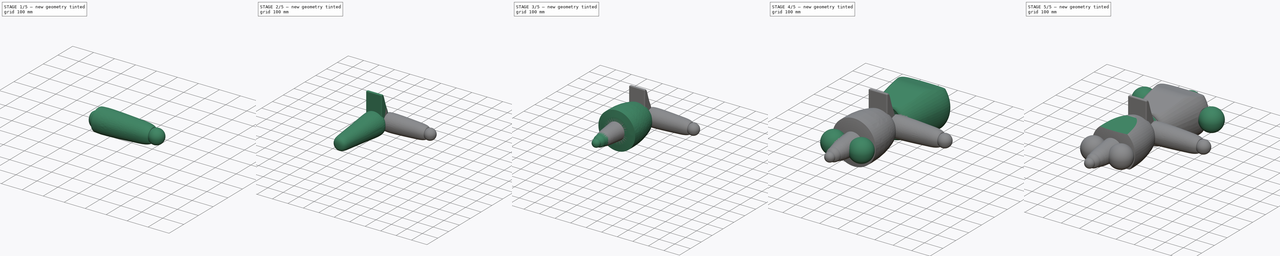
[diagram: build sequence overview — one tinted view per stage of 5, left to right]
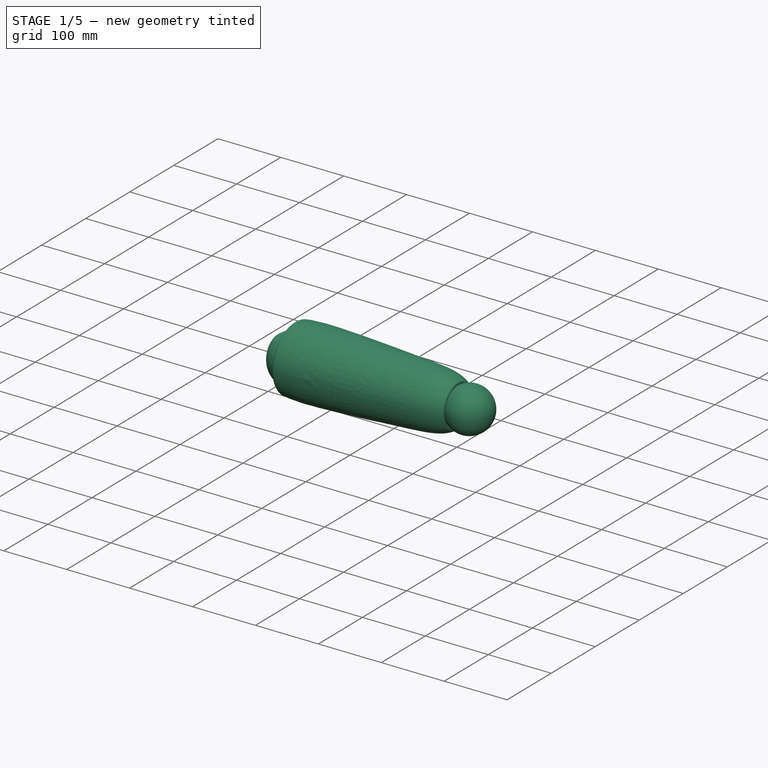
[diagram: stage 1 of 5 — iso view after this stage's code; geometry added in this stage tinted green]
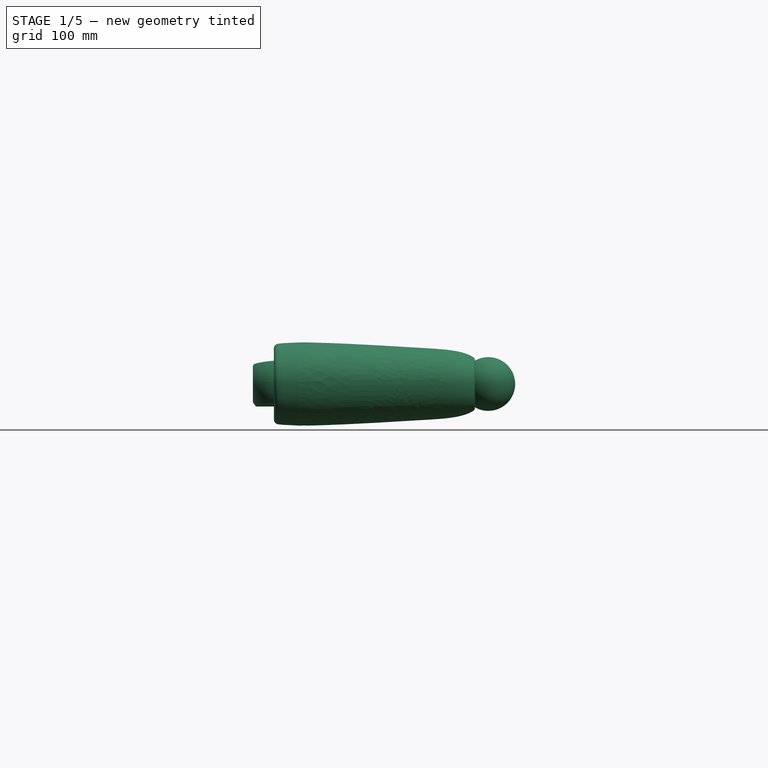
[diagram: stage 1 of 5 — front view after this stage's code; geometry added in this stage tinted green]
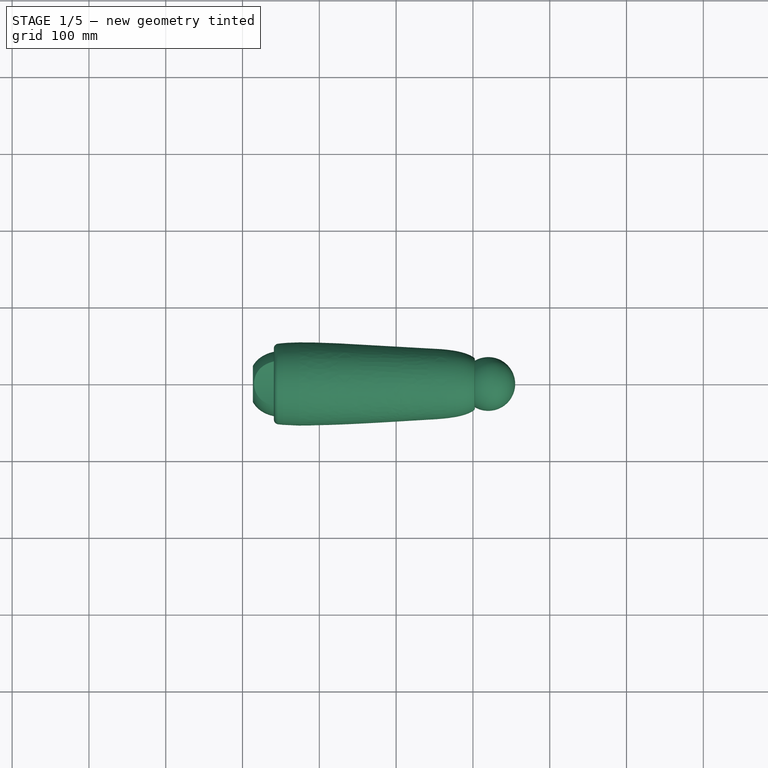
[diagram: stage 1 of 5 — top view after this stage's code; geometry added in this stage tinted green]
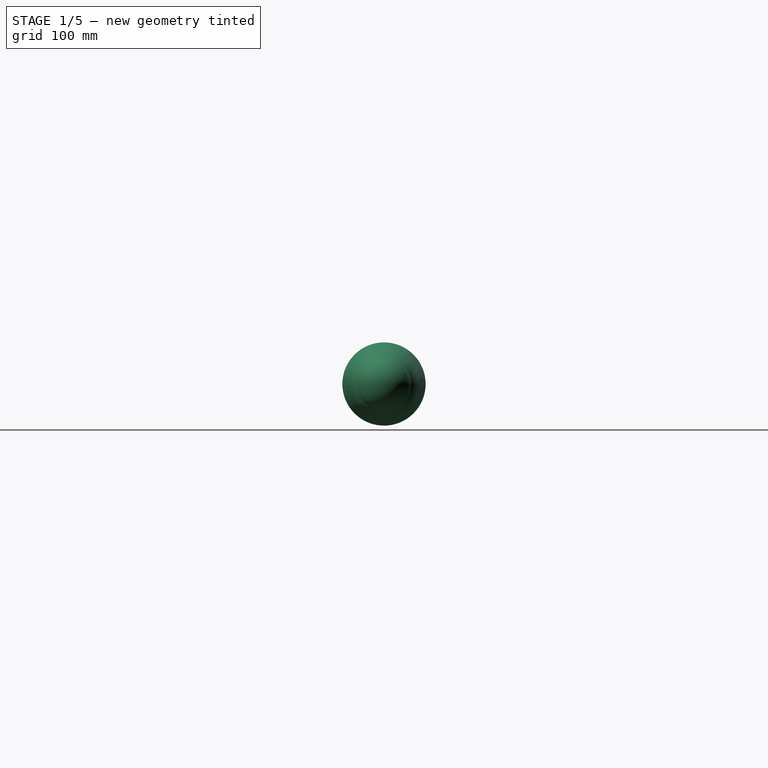
[diagram: stage 1 of 5 — right view after this stage's code; geometry added in this stage tinted green]
FCSTD DOCUMENT  (FreeCAD 0.21R33771 (Git))
Label: Mannequin_mp-dummy-VariableHeight-standing-001
License: All rights reserved
LicenseURL: http://en.wikipedia.org/wiki/All_rights_reserved
objects: Sketcher::SketchObject×32, PartDesign::CoordinateSystem×19, PartDesign::Revolution×16, PartDesign::Groove×16, PartDesign::Fillet×16, PartDesign::Body×9, PartDesign::Pocket×7, App::Link×6, App::DocumentObjectGroup×5, PartDesign::Pad×1, Spreadsheet::Sheet×1, App::Part×1
note: 172 computed .brp shape members not serialized (recipe doc carries the construction recipe); baked Part::Feature solids carry a one-line shape summary decoded from their .brp

FEATURE [PartDesign::Body] Body021  label="Hip"
  Group = -> [Sketch070,Revolution038,Sketch071,Groove030,Fillet031,Sketch072,Groove031,Revolution039,Sketch073,Pocket012,Sketch074,Pocket013,Local_CS032,Local_CS034,Local_CS035]
  Origin = -> Origin023
  Placement = pos=(0,1197.02,0.39) rot=(0,0,1;0rad)
  Tip = -> Pocket013
  expr: .Placement.Base.y = 1197.02 * <<Parameters>>.body_tall
  expr: .Placement.Base.z = 0.39 * <<Parameters>>.body_width
FEATURE [Sketcher::SketchObject] Sketch085
  FullyConstrained = true
  MapMode = 5
  Support = -> [XY_Plane027]
  expr: Constraints[20] = 15.94 * <<Parameters>>.arm_tall
  expr: Constraints[21] = 290.91 * <<Parameters>>.arm_tall
  expr: Constraints[22] = 34.86 * <<Parameters>>.arm_tall
  expr: Constraints[23] = 17.47 * <<Parameters>>.arm_tall
  expr: Constraints[24] = 69.31 * <<Parameters>>.arm_tall
  expr: Constraints[25] = 92.42 * <<Parameters>>.arm_tall
  expr: Constraints[26] = 53.52 * <<Parameters>>.arm_width
  expr: Constraints[27] = 46.74 * <<Parameters>>.arm_width
  expr: Constraints[28] = 56.91 * <<Parameters>>.arm_width
  expr: Constraints[29] = 42.31 * <<Parameters>>.arm_width
  sketch-geometry (12):
    g0: LineSegment StartX=15.94 StartY=0 StartZ=0 EndX=306.85 EndY=0 EndZ=0
    g1-g6: Circle x6 (B-spline internal-alignment scaffolding for g7; pole/knot coordinates omitted)
    g7: BSplineCurve PolesCount=6 KnotsCount=4 Degree=3 IsPeriodic=0
    g8-g11: GeomPoint x4 (B-spline internal-alignment scaffolding for g7; pole/knot coordinates omitted)
  constraints (18):
    c: PointOnObject(g0,g-1)
    c: Horizontal(g0)
    c: Weight(g1) = 1
    c: Coincident(g7,g0)
    c: Equal(g1, g2-g6) x5
    c: Coincident(g7,g0)
    c: InternalAlignment(g1-g6 -> g7) x6
    c: InternalAlignment(g8-g11 -> g7) x4
    c: DistanceX(g-1,g0) = 15.94
    c: DistanceX(g0,g0) = 290.91
    c: DistanceX(g5,g0) = 34.86
    c: DistanceX(g0,g2) = 17.47
    c: DistanceX(g9,g0) = 69.31
    c: DistanceX(g0,g10) = 92.42
    c: DistanceY(g0,g10) = 53.52
    c: DistanceY(g0,g9) = 46.74
    c: DistanceY(g0,g5) = 56.91
    c: DistanceY(g0,g2) = 42.31
FEATURE [PartDesign::Revolution] Revolution045  label="R Upper limb"
  Angle = 360
  Axis = (1,0,0)
  Base = (0,0,0)
  Profile = -> Sketch085
  ReferenceAxis = -> Sketch085 [H_Axis]
FEATURE [PartDesign::CoordinateSystem] Local_CS041  label="Right upper limb/Shoulder LCS"
  AttacherType = Attacher::AttachEngine3D
  AttachmentOffset = pos=(0,0,0) rot=(0,0,1;3.14159rad)
  MapMode = 2
  Placement = pos=(0,0,0) rot=(0,0,1;3.14159rad)
  Support = -> [Revolution045]
FEATURE [PartDesign::CoordinateSystem] Local_CS042  label="Right upper limb/Elbow LCS"
  AttacherType = Attacher::AttachEngine3D
  AttachmentOffset = pos=(320,0,0) rot=(0,0,1;3.14159rad)
  MapMode = 2
  Placement = pos=(320,0,0) rot=(0,0,1;3.14159rad)
  Support = -> [Revolution045]
FEATURE [Sketcher::SketchObject] Sketch086
  FullyConstrained = true
  MapMode = 5
  Support = -> [XY_Plane027]
  expr: Constraints[5] = 60 * <<Parameters>>.arm_tall
  sketch-geometry (2):
    g0: LineSegment StartX=-60 StartY=0 StartZ=0 EndX=60 EndY=0 EndZ=0
    g1: ArcOfCircle CenterX=0 CenterY=0 CenterZ=0 NormalX=0 NormalY=0 NormalZ=1 AngleXU=0 Radius=60 StartAngle=0 EndAngle=3.14159
  constraints (6):
    c: Horizontal(g0)
    c: PointOnObject(g1,g0)
    c: Coincident(g1,g0)
    c: Coincident(g1,g0)
    c: Coincident(g1,g-1)
    c: Radius(g1) = 60
FEATURE [PartDesign::Groove] Groove037  label="R Sloulder cut"
  Angle = 360
  Axis = (1,0,0)
  Base = (0,0,0)
  BaseFeature = -> Revolution045
  Profile = -> Sketch086
  ReferenceAxis = -> Sketch086 [H_Axis]
  Reversed = true
FEATURE [PartDesign::Fillet] Fillet037  label="R Shoulder fillet"
  Base = -> Groove037 [Edge2]
  BaseFeature = -> Groove037
  Radius = 6
  SupportTransform = false
  UseAllEdges = false
FEATURE [Sketcher::SketchObject] Sketch087
  FullyConstrained = true
  MapMode = 5
  Support = -> [XY_Plane027]
  expr: Constraints[5] = 320 * <<Parameters>>.arm_tall
  expr: Constraints[6] = 35 * <<Parameters>>.arm_tall
  sketch-geometry (2):
    g0: LineSegment StartX=285 StartY=0 StartZ=0 EndX=355 EndY=0 EndZ=0
    g1: ArcOfCircle CenterX=320 CenterY=0 CenterZ=0 NormalX=0 NormalY=0 NormalZ=1 AngleXU=0 Radius=35 StartAngle=0 EndAngle=3.14159
  constraints (7):
    c: Horizontal(g0)
    c: PointOnObject(g1,g0)
    c: Coincident(g1,g0)
    c: Coincident(g1,g0)
    c: Horizontal(g1,g-1)
    c: DistanceX(g-1,g1) = 320
    c: Radius(g1) = 35
FEATURE [PartDesign::Groove] Groove038  label="R Elbow cut"
  Angle = 360
  Axis = (1,0,0)
  Base = (0,0,0)
  BaseFeature = -> Fillet037
  Profile = -> Sketch087
  ReferenceAxis = -> Sketch087 [H_Axis]
  Reversed = true
FEATURE [PartDesign::Fillet] Fillet038  label="R Elbow fillet"
  Base = -> Groove038 [Edge1]
  BaseFeature = -> Groove038
  Radius = 3
  SupportTransform = false
  UseAllEdges = false
FEATURE [PartDesign::Revolution] Revolution046  label="R Elbow"
  Angle = 360
  Axis = (1,0,0)
  Base = (0,0,0)
  BaseFeature = -> Fillet038
  Profile = -> Sketch087
  ReferenceAxis = -> Sketch087 [H_Axis]
FEATURE [PartDesign::Body] Body026  label="Right Forearm"
  Group = -> [Sketch088,Revolution047,Sketch089,Groove039,Fillet039,Sketch090,Groove040,Fillet040,Revolution048,Local_CS043,Local_CS044]
  Origin = -> Origin028
  Placement = pos=(-226.9,1152.7,-98.44) rot=(0.647608,-0.348712,0.677498;3.40008rad)
  Tip = -> Revolution048
  expr: .Placement.Base.x = -226.9 * <<Parameters>>.arm_width
  expr: .Placement.Base.y = 1152.7 * <<Parameters>>.arm_tall
  expr: .Placement.Base.z = -98.44 * <<Parameters>>.arm_width
FEATURE [Sketcher::SketchObject] Sketch091
  FullyConstrained = true
  MapMode = 5
  Support = -> [XY_Plane029]
  expr: Constraints[18] = 6.15 * <<Parameters>>.arm_tall
  expr: Constraints[19] = 143.23 * <<Parameters>>.arm_tall
  expr: Constraints[20] = 45.07 * <<Parameters>>.arm_tall
  expr: Constraints[21] = 33.65 * <<Parameters>>.arm_tall
  expr: Constraints[22] = 5.22 * <<Parameters>>.arm_tall
  expr: Constraints[23] = 73.98 * <<Parameters>>.arm_tall
  expr: Constraints[24] = 42.72 * <<Parameters>>.arm_tall
  sketch-geometry (10):
    g0: LineSegment StartX=6.15 StartY=0 StartZ=0 EndX=149.38 EndY=0 EndZ=0
    g1-g5: Circle x5 (B-spline internal-alignment scaffolding for g6; pole/knot coordinates omitted)
    g6: BSplineCurve PolesCount=5 KnotsCount=3 Degree=3 IsPeriodic=0
    g7: GeomPoint X=6.15 Y=0 Z=0
    g8: GeomPoint X=80.13 Y=42.72 Z=0
    g9: GeomPoint X=149.38 Y=0 Z=0
  constraints (18):
    c: PointOnObject(g0,g-1)
    c: Horizontal(g0)
    c: Weight(g1) = 1
    c: Coincident(g6,g0)
    c: Equal(g1, g2-g5) x4
    c: Coincident(g6,g0)
    c: InternalAlignment(g1-g5 -> g6) x5
    c: InternalAlignment(g7,g6)
    c: InternalAlignment(g8,g6)
    c: InternalAlignment(g9,g6)
    c: Vertical(g0,g4)
    c: DistanceX(g-1,g0) = 6.15
    c: DistanceX(g0,g0) = 143.23
    c: DistanceY(g0,g2) = 45.07
    c: DistanceY(g0,g4) = 33.65
    c: DistanceX(g0,g2) = 5.22
    c: DistanceX(g0,g8) = 73.98
    c: DistanceY(g0,g8) = 42.72
FEATURE [PartDesign::Revolution] Revolution049  label="R hand main body"
  Angle = 360
  Axis = (1,0,0)
  Base = (0,0,0)
  Profile = -> Sketch091
  ReferenceAxis = -> Sketch091 [H_Axis]
FEATURE [PartDesign::CoordinateSystem] Local_CS045  label="Right Hand/Wrist LCS"
  AttacherType = Attacher::AttachEngine3D
  AttachmentOffset = pos=(0,0,0) rot=(0,0,1;3.14159rad)
  MapMode = 2
  Placement = pos=(0,0,0) rot=(0,0,1;3.14159rad)
  Support = -> [Revolution049]
FEATURE [Sketcher::SketchObject] Sketch092
  FullyConstrained = true
  MapMode = 5
  Support = -> [XY_Plane029]
  expr: Constraints[5] = 25 * <<Parameters>>.arm_tall
  sketch-geometry (2):
    g0: LineSegment StartX=-25 StartY=0 StartZ=0 EndX=25 EndY=0 EndZ=0
    g1: ArcOfCircle CenterX=0 CenterY=0 CenterZ=0 NormalX=0 NormalY=0 NormalZ=1 AngleXU=0 Radius=25 StartAngle=0 EndAngle=3.14159
  constraints (6):
    c: Horizontal(g0)
    c: PointOnObject(g1,g0)
    c: Coincident(g1,g0)
    c: Coincident(g1,g0)
    c: Coincident(g1,g-1)
    c: Radius(g1) = 25
FEATURE [PartDesign::Groove] Groove041  label="wrist cut001"
  Angle = 360
  Axis = (1,0,0)
  Base = (0,0,0)
  BaseFeature = -> Revolution049
  Profile = -> Sketch092
  ReferenceAxis = -> Sketch092 [H_Axis]
  Reversed = true
FEATURE [PartDesign::Fillet] Fillet041  label="wrist fillet001"
  Base = -> Groove041 [Edge1]
  BaseFeature = -> Groove041
  Radius = 3
  SupportTransform = false
  UseAllEdges = false
FEATURE [Sketcher::SketchObject] Sketch093
  FullyConstrained = true
  MapMode = 5
  Placement = pos=(0,0,0) rot=(0.57735,0.57735,0.57735;2.0944rad)
  Support = -> [YZ_Plane029]
  expr: Constraints[5] = 125.86 * <<Parameters>>.arm_tall
  expr: Constraints[6] = 99.81 * <<Parameters>>.arm_tall
  sketch-geometry (3):
    g0: ArcOfCircle CenterX=0 CenterY=125.86 CenterZ=0 NormalX=0 NormalY=0 NormalZ=1 AngleXU=0 Radius=99.81 StartAngle=3.99576 EndAngle=5.39167
    g1: LineSegment StartX=-65.5601 StartY=50.601 StartZ=0 EndX=0 EndY=125.86 EndZ=0
    g2: LineSegment StartX=0 StartY=125.86 StartZ=0 EndX=62.7041 EndY=48.2054 EndZ=0
  constraints (9):
    c: PointOnObject(g0,g-2)
    c: Coincident(g1,g0)
    c: Coincident(g1,g0)
    c: Coincident(g2,g0)
    c: Coincident(g2,g0)
    c: DistanceY(g-1,g0) = 125.86
    c: Radius(g0) = 99.81
    c: Angle(g-2,g2) = 0.679282
    c: Angle(g1,g-2) = 0.716632
FEATURE [PartDesign::Pocket] Pocket016
  BaseFeature = -> Fillet041
  Direction = (1,0,0)
  Length = 5
  Length2 = 5
  Profile = -> Sketch093
  ReferenceAxis = -> Sketch093 [N_Axis]
  Type = 1
  UseCustomVector = true
FEATURE [Sketcher::SketchObject] Sketch094
  FullyConstrained = true
  MapMode = 5
  Placement = pos=(0,0,0) rot=(0.57735,0.57735,0.57735;2.0944rad)
  Support = -> [YZ_Plane029]
  expr: Constraints[10] = 69.91 * <<Parameters>>.arm_tall
  expr: Constraints[11] = 107.98 * <<Parameters>>.arm_tall
  expr: Constraints[12] = 81.62 * <<Parameters>>.arm_tall
  expr: Constraints[8] = 7.98 * <<Parameters>>.arm_tall
  expr: Constraints[9] = 2.95 * <<Parameters>>.arm_tall
  sketch-geometry (4):
    g0: ArcOfCircle CenterX=0 CenterY=78.6755 CenterZ=0 NormalX=0 NormalY=0 NormalZ=1 AngleXU=0 Radius=107.98 StartAngle=3.9188 EndAngle=5.56939
    g1: LineSegment StartX=81.62 StartY=7.98 StartZ=0 EndX=81.62 EndY=-69.91 EndZ=0
    g2: LineSegment StartX=81.62 StartY=-69.91 StartZ=0 EndX=-76.9761 EndY=-69.91 EndZ=0
    g3: LineSegment StartX=-76.9761 StartY=-69.91 StartZ=0 EndX=-76.9761 EndY=2.95 EndZ=0
  constraints (13):
    c: PointOnObject(g0,g-2)
    c: Coincident(g0,g1)
    c: Coincident(g1,g2)
    c: Horizontal(g2)
    c: Coincident(g2,g3)
    c: Coincident(g3,g0)
    c: Vertical(g3)
    c: Vertical(g1)
    c: DistanceY(g-1,g0) = 7.98
    c: DistanceY(g-1,g0) = 2.95
    c: DistanceY(g1,g-1) = 69.91
    c: Radius(g0) = 107.98
    c: DistanceX(g-1,g1) = 81.62
FEATURE [PartDesign::Pocket] Pocket017
  BaseFeature = -> Pocket016
  Direction = (1,0,0)
  Length = 5
  Length2 = 5
  Profile = -> Sketch094
  ReferenceAxis = -> Sketch094 [N_Axis]
  Type = 1
  UseCustomVector = true
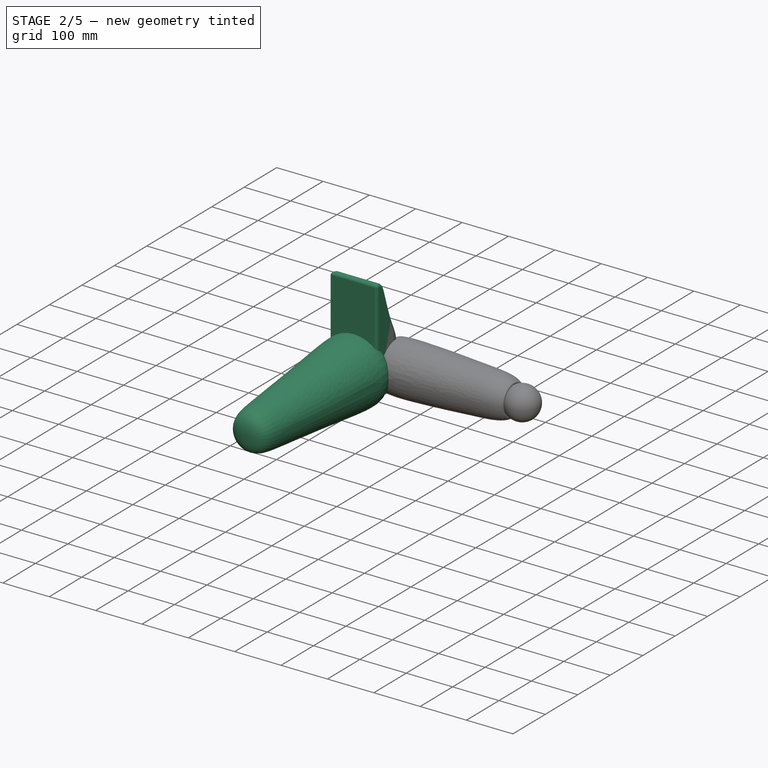
[diagram: stage 2 of 5 — iso view after this stage's code; geometry added in this stage tinted green]
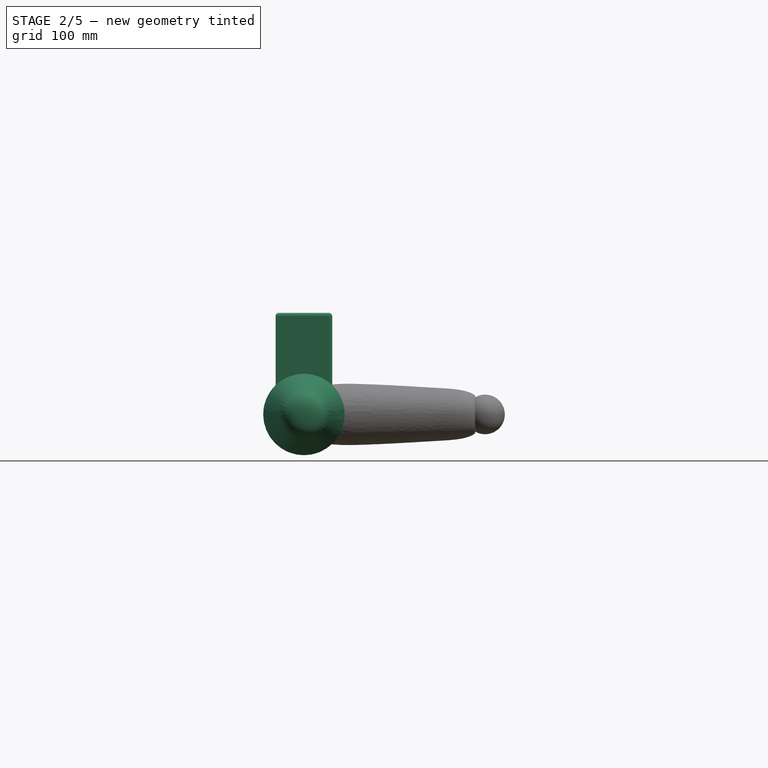
[diagram: stage 2 of 5 — front view after this stage's code; geometry added in this stage tinted green]
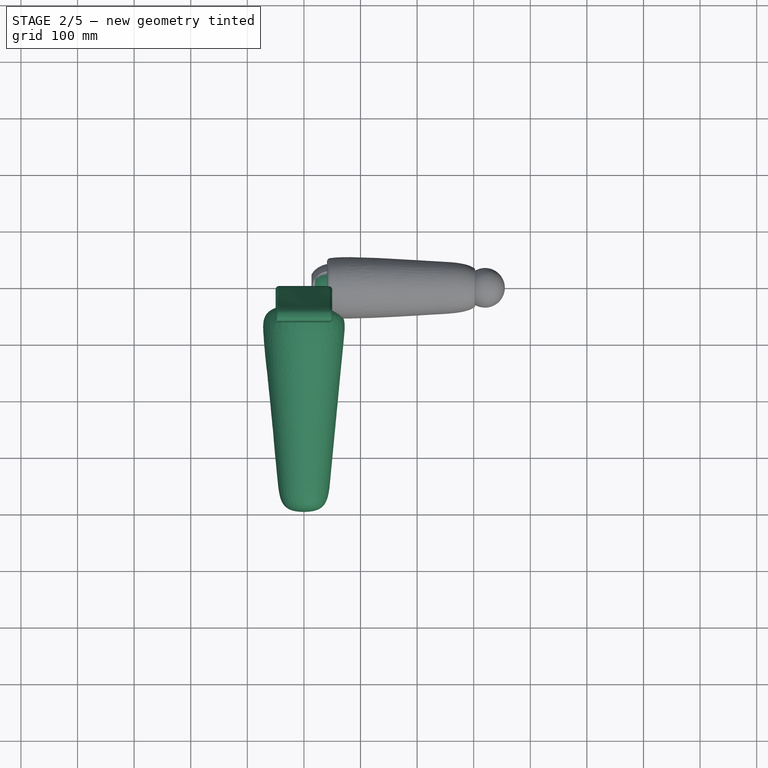
[diagram: stage 2 of 5 — top view after this stage's code; geometry added in this stage tinted green]
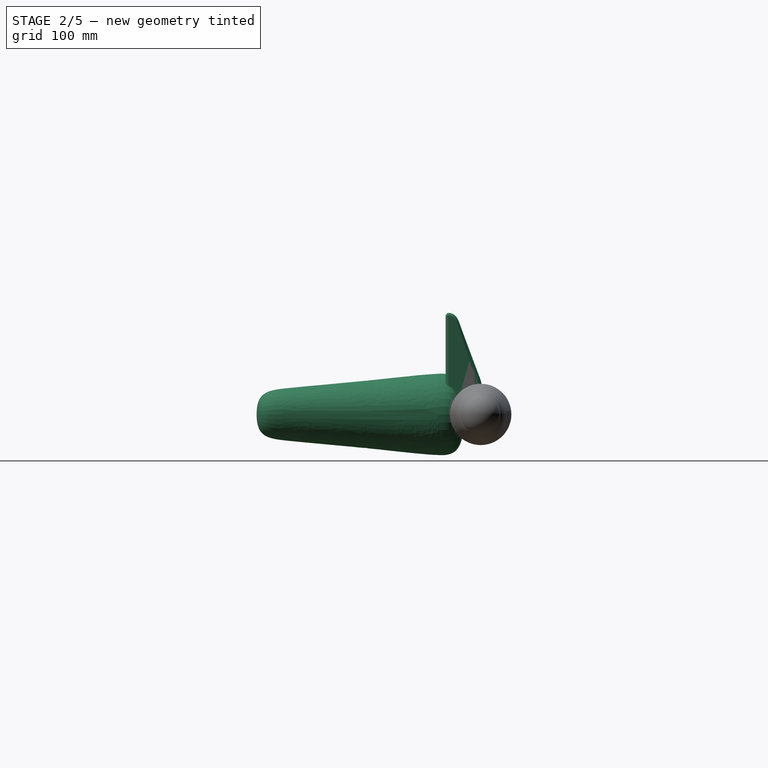
[diagram: stage 2 of 5 — right view after this stage's code; geometry added in this stage tinted green]
FEATURE [PartDesign::Body] Body025  label="Right Upper limb"
  Group = -> [Sketch085,Revolution045,Sketch086,Groove037,Fillet037,Sketch087,Groove038,Fillet038,Revolution046,Local_CS041,Local_CS042]
  Origin = -> Origin027
  Placement = pos=(-184,1454.02,0.39) rot=(0.149813,0.139825,-0.978777;1.73172rad)
  Tip = -> Revolution046
  expr: .Placement.Base.x = -184 * <<Parameters>>.arm_width
  expr: .Placement.Base.y = 1454.02 * <<Parameters>>.arm_tall
  expr: .Placement.Base.z = 0.39 * <<Parameters>>.arm_width
FEATURE [Sketcher::SketchObject] Sketch088
  FullyConstrained = true
  MapMode = 5
  Support = -> [XY_Plane028]
  expr: Constraints[20] = 5.15 * <<Parameters>>.arm_tall
  expr: Constraints[21] = 262.12 * <<Parameters>>.arm_tall
  expr: Constraints[22] = 3.24 * <<Parameters>>.arm_tall
  expr: Constraints[23] = 3.43 * <<Parameters>>.arm_tall
  expr: Constraints[24] = 85.14 * <<Parameters>>.arm_tall
  expr: Constraints[25] = 59.58 * <<Parameters>>.arm_tall
  expr: Constraints[26] = 38.96 * <<Parameters>>.arm_width
  expr: Constraints[27] = 33.03 * <<Parameters>>.arm_width
  expr: Constraints[28] = 29.07 * <<Parameters>>.arm_width
  expr: Constraints[29] = 43.6 * <<Parameters>>.arm_width
  sketch-geometry (12):
    g0: LineSegment StartX=5.15 StartY=0 StartZ=0 EndX=267.27 EndY=0 EndZ=0
    g1-g6: Circle x6 (B-spline internal-alignment scaffolding for g7; pole/knot coordinates omitted)
    g7: BSplineCurve PolesCount=6 KnotsCount=4 Degree=3 IsPeriodic=0
    g8-g11: GeomPoint x4 (B-spline internal-alignment scaffolding for g7; pole/knot coordinates omitted)
  constraints (18):
    c: PointOnObject(g0,g-1)
    c: Horizontal(g0)
    c: Weight(g1) = 1
    c: Coincident(g7,g0)
    c: Equal(g1, g2-g6) x5
    c: Coincident(g7,g0)
    c: InternalAlignment(g1-g6 -> g7) x6
    c: InternalAlignment(g8-g11 -> g7) x4
    c: DistanceX(g-1,g0) = 5.15
    c: DistanceX(g0,g0) = 262.12
    c: DistanceX(g-1,g5) = 3.24
    c: DistanceX(g2,g0) = 3.43
    c: DistanceX(g0,g10) = 85.14
    c: DistanceX(g9,g0) = 59.58
    c: DistanceY(g0,g10) = 38.96
    c: DistanceY(g0,g9) = 33.03
    c: DistanceY(g0,g2) = 29.07
    c: DistanceY(g0,g5) = 43.6
FEATURE [PartDesign::Revolution] Revolution047  label="Right Forearm main body"
  Angle = 360
  Axis = (1,0,0)
  Base = (0,0,0)
  Profile = -> Sketch088
  ReferenceAxis = -> Sketch088 [H_Axis]
FEATURE [PartDesign::CoordinateSystem] Local_CS043  label="Right Forearm/Elbow"
  AttacherType = Attacher::AttachEngine3D
  AttachmentOffset = pos=(0,0,0) rot=(0,0,1;3.14159rad)
  MapMode = 2
  Placement = pos=(0,0,0) rot=(0,0,1;3.14159rad)
  Support = -> [Revolution047]
FEATURE [PartDesign::CoordinateSystem] Local_CS044  label="Right Forearm/Wrist"
  AttacherType = Attacher::AttachEngine3D
  AttachmentOffset = pos=(253,0,0) rot=(0,0,1;3.14159rad)
  MapMode = 2
  Placement = pos=(253,0,0) rot=(0,0,1;3.14159rad)
  Support = -> [Revolution047]
FEATURE [Sketcher::SketchObject] Sketch089
  FullyConstrained = true
  MapMode = 5
  Support = -> [XY_Plane028]
  expr: Constraints[5] = 35 * <<Parameters>>.arm_tall
  sketch-geometry (2):
    g0: LineSegment StartX=-35 StartY=0 StartZ=0 EndX=35 EndY=0 EndZ=0
    g1: ArcOfCircle CenterX=0 CenterY=0 CenterZ=0 NormalX=0 NormalY=0 NormalZ=1 AngleXU=0 Radius=35 StartAngle=0 EndAngle=3.14159
  constraints (6):
    c: Horizontal(g0)
    c: PointOnObject(g1,g0)
    c: Coincident(g1,g0)
    c: Coincident(g1,g0)
    c: Coincident(g1,g-1)
    c: Radius(g1) = 35
FEATURE [PartDesign::Groove] Groove039  label="Right elbow cut"
  Angle = 360
  Axis = (1,0,0)
  Base = (0,0,0)
  BaseFeature = -> Revolution047
  Profile = -> Sketch089
  ReferenceAxis = -> Sketch089 [H_Axis]
  Reversed = true
FEATURE [PartDesign::Fillet] Fillet039  label="Right elbow fillet"
  Base = -> Groove039 [Edge2]
  BaseFeature = -> Groove039
  Radius = 3
  SupportTransform = false
  UseAllEdges = false
FEATURE [Sketcher::SketchObject] Sketch090
  FullyConstrained = true
  MapMode = 5
  Support = -> [XY_Plane028]
  expr: Constraints[5] = 253 * <<Parameters>>.arm_tall
  expr: Constraints[6] = 25 * <<Parameters>>.arm_tall
  sketch-geometry (2):
    g0: LineSegment StartX=228 StartY=0 StartZ=0 EndX=278 EndY=0 EndZ=0
    g1: ArcOfCircle CenterX=253 CenterY=0 CenterZ=0 NormalX=0 NormalY=0 NormalZ=1 AngleXU=0 Radius=25 StartAngle=0 EndAngle=3.14159
  constraints (7):
    c: Horizontal(g0)
    c: PointOnObject(g1,g0)
    c: Coincident(g1,g0)
    c: Coincident(g1,g0)
    c: Horizontal(g1,g-1)
    c: DistanceX(g-1,g1) = 253
    c: Radius(g1) = 25
FEATURE [PartDesign::Groove] Groove040  label="Right wrist cut"
  Angle = 360
  Axis = (1,0,0)
  Base = (0,0,0)
  BaseFeature = -> Fillet039
  Profile = -> Sketch090
  ReferenceAxis = -> Sketch090 [H_Axis]
  Reversed = true
FEATURE [PartDesign::Fillet] Fillet040  label="Right wrist fillet"
  Base = -> Groove040 [Edge1]
  BaseFeature = -> Groove040
  Radius = 3
  SupportTransform = false
  UseAllEdges = false
FEATURE [PartDesign::Revolution] Revolution048  label="Right wrist"
  Angle = 360
  Axis = (1,0,0)
  Base = (0,0,0)
  BaseFeature = -> Fillet040
  Profile = -> Sketch090
  ReferenceAxis = -> Sketch090 [H_Axis]
FEATURE [PartDesign::Body] Body027  label="Right hand"
  Group = -> [Sketch091,Revolution049,Sketch092,Groove041,Fillet041,Sketch093,Pocket016,Sketch094,Pocket017,Local_CS045]
  Origin = -> Origin029
  Placement = pos=(-261.52,996.94,97.9) rot=(0.649935,-0.009999,0.759924;3.48839rad)
  Tip = -> Pocket017
  expr: .Placement.Base.x = -261.52 * <<Parameters>>.arm_width
  expr: .Placement.Base.y = 996.94 * <<Parameters>>.arm_tall
  expr: .Placement.Base.z = 97.9 * <<Parameters>>.arm_width
FEATURE [Sketcher::SketchObject] Sketch103
  FullyConstrained = true
  MapMode = 5
  Support = -> [XY_Plane033]
  expr: Constraints[25] = 29.25 * <<Parameters>>.leg_tall
  expr: Constraints[26] = 395.97 * <<Parameters>>.leg_tall
  expr: Constraints[27] = 71.64 * <<Parameters>>.leg_width
  expr: Constraints[28] = 71.98 * <<Parameters>>.leg_width
  expr: Constraints[29] = 60.2 * <<Parameters>>.leg_width
  expr: Constraints[30] = 46.67 * <<Parameters>>.leg_width
  expr: Constraints[31] = 39.99 * <<Parameters>>.leg_width
  expr: Constraints[32] = 339.29 * <<Parameters>>.leg_tall
  expr: Constraints[33] = 197.09 * <<Parameters>>.leg_tall
  expr: Constraints[34] = 80.2 * <<Parameters>>.leg_tall
  sketch-geometry (14):
    g0: LineSegment StartX=0 StartY=-29.25 StartZ=0 EndX=0 EndY=-395.97 EndZ=0
    g1-g7: Circle x7 (B-spline internal-alignment scaffolding for g8; pole/knot coordinates omitted)
    g8: BSplineCurve PolesCount=7 KnotsCount=5 Degree=3 IsPeriodic=0
    g9-g13: GeomPoint x5 (B-spline internal-alignment scaffolding for g8; pole/knot coordinates omitted)
  constraints (20):
    c: PointOnObject(g0,g-2)
    c: Vertical(g0)
    c: Weight(g1) = 1
    c: Coincident(g8,g0)
    c: Equal(g1, g2-g7) x6
    c: Coincident(g8,g0)
    c: InternalAlignment(g1-g7 -> g8) x7
    c: InternalAlignment(g9-g13 -> g8) x5
    c: Horizontal(g0,g6)
    c: Horizontal(g0,g2)
    c: DistanceY(g0,g-1) = 29.25
    c: DistanceY(g0,g-1) = 395.97
    c: DistanceX(g-1,g10) = 71.64
    c: DistanceX(g-1,g2) = 71.98
    c: DistanceX(g-1,g11) = 60.2
    c: DistanceX(g-1,g12) = 46.67
    c: DistanceX(g0,g6) = 39.99
    c: DistanceY(g12,g-1) = 339.29
    c: DistanceY(g11,g-1) = 197.09
    c: DistanceY(g10,g-1) = 80.2
FEATURE [PartDesign::Revolution] Revolution054  label="R Thigh main body"
  Angle = 360
  Axis = (0,1,0)
  Base = (0,0,0)
  Profile = -> Sketch103
  ReferenceAxis = -> Sketch103 [V_Axis]
  Reversed = true
FEATURE [PartDesign::Body] Body032  label="Right Shin"
  Group = -> [Sketch106,Revolution056,Sketch107,Groove049,Fillet050,Sketch108,Groove050,Fillet051,Revolution057,Local_CS053,Local_CS054]
  Origin = -> Origin034
  Placement = pos=(-75,497,28.5) rot=(0,0,1;0rad)
  Tip = -> Revolution057
  expr: .Placement.Base.x = -75 * <<Parameters>>.leg_width
  expr: .Placement.Base.y = 497 * <<Parameters>>.leg_tall
  expr: .Placement.Base.z = 28.5 * <<Parameters>>.leg_width
FEATURE [Sketcher::SketchObject] Sketch109
  FullyConstrained = true
  MapMode = 5
  Placement = pos=(0,0,0) rot=(0.57735,0.57735,0.57735;2.0944rad)
  Support = -> [YZ_Plane035]
  expr: Constraints[1] = 62 * <<Parameters>>.leg_tall
  expr: Constraints[2] = 40 * <<Parameters>>.leg_tall
  expr: Constraints[33] = 33.4 * <<Parameters>>.leg_tall
  expr: Constraints[34] = 17.31 * <<Parameters>>.leg_tall
  expr: Constraints[35] = 26.38 * <<Parameters>>.leg_tall
  expr: Constraints[36] = 46.1 * <<Parameters>>.leg_tall
  expr: Constraints[37] = 64.38 * <<Parameters>>.leg_tall
  expr: Constraints[38] = 54.08 * <<Parameters>>.leg_tall
  expr: Constraints[39] = 57.43 * <<Parameters>>.leg_tall
  expr: Constraints[3] = 220 * <<Parameters>>.leg_tall
  expr: Constraints[40] = 5.83 * <<Parameters>>.leg_tall
  expr: Constraints[41] = 40.67 * <<Parameters>>.leg_tall
  expr: Constraints[42] = 85.44 * <<Parameters>>.leg_tall
  expr: Constraints[43] = 138.2 * <<Parameters>>.leg_tall
  expr: Constraints[44] = 195.82 * <<Parameters>>.leg_tall
  sketch-geometry (18):
    g0: LineSegment StartX=-62 StartY=180 StartZ=0 EndX=-62 EndY=-40 EndZ=0
    g1-g9: Circle x9 (B-spline internal-alignment scaffolding for g10; pole/knot coordinates omitted)
    g10: BSplineCurve PolesCount=9 KnotsCount=7 Degree=3 IsPeriodic=0
    g11-g17: GeomPoint x7 (B-spline internal-alignment scaffolding for g10; pole/knot coordinates omitted)
  constraints (24):
    c: Vertical(g0)
    c: DistanceX(g0,g-1) = 62
    c: DistanceY(g0,g-1) = 40
    c: DistanceY(g0,g0) = 220
    c: Weight(g1) = 1
    c: Coincident(g10,g0)
    c: Equal(g1, g2-g9) x8
    c: Coincident(g10,g0)
    c: InternalAlignment(g1-g9 -> g10) x9
    c: InternalAlignment(g11-g17 -> g10) x7
    c: Horizontal(g0,g8)
    c: Horizontal(g0,g2)
    c: DistanceX(g0,g2) = 33.4
    c: DistanceX(g0,g8) = 17.31
    c: DistanceX(g0,g16) = 26.38
    c: DistanceX(g0,g15) = 46.1
    c: DistanceX(g0,g14) = 64.38
    c: DistanceX(g0,g13) = 54.08
    c: DistanceX(g0,g12) = 57.43
    c: DistanceY(g0,g12) = 5.83
    c: DistanceY(g0,g13) = 40.67
    c: DistanceY(g0,g14) = 85.44
    c: DistanceY(g0,g15) = 138.2
    c: DistanceY(g0,g16) = 195.82
FEATURE [PartDesign::Pad] Pad003  label="R foot main body"
  Direction = (1,-2e-16,3e-16)
  Length = 100
  Length2 = 10
  Midplane = true
  Placement = pos=(0,0,0) rot=(0.57735,0.57735,0.57735;2.0944rad)
  Profile = -> Sketch109
  ReferenceAxis = -> Sketch109 [N_Axis]
  Type = 0
FEATURE [PartDesign::Fillet] Fillet052
  Base = -> Pad003 [Edge4,Edge6,Edge1,Edge5,Edge2]
  BaseFeature = -> Pad003
  Placement = pos=(0,0,0) rot=(0.57735,0.57735,0.57735;2.0944rad)
  Radius = 6
  SupportTransform = false
  UseAllEdges = false
FEATURE [PartDesign::CoordinateSystem] Local_CS055  label="Right Foot/Ankle"
  AttacherType = Attacher::AttachEngine3D
  MapMode = 2
  Placement = pos=(0,0,0) rot=(0.57735,0.57735,0.57735;2.0944rad)
  Support = -> [Pad003]
FEATURE [Sketcher::SketchObject] Sketch110
  FullyConstrained = true
  MapMode = 5
  Support = -> [XY_Plane035]
  expr: Constraints[5] = 25 * <<Parameters>>.leg_tall
  sketch-geometry (2):
    g0: LineSegment StartX=0 StartY=25 StartZ=0 EndX=0 EndY=-25 EndZ=0
    g1: ArcOfCircle CenterX=0 CenterY=0 CenterZ=0 NormalX=0 NormalY=0 NormalZ=1 AngleXU=0 Radius=25 StartAngle=4.71239 EndAngle=7.85398
  constraints (6):
    c: Vertical(g0)
    c: PointOnObject(g1,g0)
    c: Coincident(g1,g0)
    c: Coincident(g1,g0)
    c: Coincident(g1,g-1)
    c: Radius(g1) = 25
FEATURE [PartDesign::Groove] Groove051  label="Ankle cut001"
  Angle = 360
  Axis = (0,1,0)
  Base = (0,0,0)
  BaseFeature = -> Fillet052
  Placement = pos=(0,0,0) rot=(0.57735,0.57735,0.57735;2.0944rad)
  Profile = -> Sketch110
  ReferenceAxis = -> Sketch110 [V_Axis]
FEATURE [PartDesign::Fillet] Fillet053
  Base = -> Groove051 [Edge20,Edge19]
  BaseFeature = -> Groove051
  Placement = pos=(0,0,0) rot=(0.57735,0.57735,0.57735;2.0944rad)
  Radius = 3
  SupportTransform = false
  UseAllEdges = false
FEATURE [PartDesign::Body] Body033  label="Right foot"
  Group = -> [Sketch109,Pad003,Fillet052,Sketch110,Groove051,Fillet053,Local_CS055]
  Origin = -> Origin035
  Placement = pos=(-75,62,28.5) rot=(0,0,1;0rad)
  Tip = -> Fillet053
  expr: .Placement.Base.x = -75 * <<Parameters>>.leg_width
  expr: .Placement.Base.y = 62 * <<Parameters>>.leg_tall
  expr: .Placement.Base.z = 28.5 * <<Parameters>>.leg_width
FEATURE [App::DocumentObjectGroup] Group  label="body"
  Group = -> [Body021,Body020]
FEATURE [App::DocumentObjectGroup] Group002  label="Right arm"
  Group = -> [Body026,Body027,Body025]
FEATURE [App::DocumentObjectGroup] Group004  label="Right leg"
  Group = -> [Body032,Body031,Body033]
FEATURE [Spreadsheet::Sheet] Spreadsheet  label="Parameters"
  Dummy_height = 0
  cells = A1='Parameters for scaling of the mannequin; A3='Height_nom; B3(height_nom)=1850; C3='mm; D3='Nominal height of the basic Mannequin; B5='Height; C5='Head tall; D5='Head width; E5='Neck tall; F5='Body tall; G5='Body width; H5='Leg tall; I5='Leg width; J5='Arm tall; K5='Arm width; A6==hiddenref(Part_2.Dummy_height.String); B6(Height)==.B27; C6(head_tall)==.C27; D6(head_width)==.D27; E6(Neck_tall)==.E27; F6(body_tall)==.F27; G6(body_width)==.G27; H6(leg_tall)==.H27; I6(leg_width)==.I27; J6(arm_tall)==.J27; K6(arm_width)==.K27; A7='1650 mm; B7=1650; C7==$B7 / height_nom; D7==1 + 0.5 * ($B7 / height_nom - 1); E7==$B7 / height_nom; F7==$B7 / height_nom; G7==1 + 0.5 * ($B7 / height_nom - 1); H7==$B7 / height_nom; I7==1 + 0.5 * ($B7 / height_nom - 1); J7==$B7 / height_nom; K7==1 + 0.5 * ($B7 / height_nom - 1); A8='1660 mm; B8=1660; C8==$B8 / height_nom; D8==1 + 0.5 * ($B8 / height_nom - 1); E8==$B8 / height_nom; F8==$B8 / height_nom; G8==1 + 0.5 * ($B8 / height_nom - 1); H8==$B8 / height_nom; I8==1 + 0.5 * ($B8 / height_nom - 1); J8==$B8 / height_nom; K8==1 + 0.5 * ($B8 / height_nom - 1); A9='1670 mm; B9=1670; C9==$B9 / height_nom; D9==1 + 0.5 * ($B9 / height_nom - 1); E9==$B9 / height_nom; F9==$B9 / height_nom; G9==1 + 0.5 * ($B9 / height_nom - 1); H9==$B9 / height_nom; I9==1 + 0.5 * ($B9 / height_nom - 1); J9==$B9 / height_nom; K9==1 + 0.5 * ($B9 / height_nom - 1); A10='1680 mm; B10=1680; C10==$B10 / height_nom; D10==1 + 0.5 * ($B10 / height_nom - 1); E10==$B10 / height_nom; F10==$B10 / height_nom; G10==1 + 0.5 * ($B10 / height_nom - 1); H10==$B10 / height_nom; I10==1 + 0.5 * ($B10 / height_nom - 1); J10==$B10 / height_nom; K10==1 + 0.5 * ($B10 / height_nom - 1); A11='1690 mm; B11=1690; C11==$B11 / height_nom; D11==1 + 0.5 * ($B11 / height_nom - 1); E11==$B11 / height_nom; F11==$B11 / height_nom; G11==1 + 0.5 * ($B11 / height_nom - 1); H11==$B11 / height_nom; I11==1 + 0.5 * ($B11 / height_nom - 1); J11==$B11 / height_nom; K11==1 + 0.5 * ($B11 / height_nom - 1); A12='1700 mm; B12=1700; C12==$B12 / height_nom; D12==1 + 0.5 * ($B12 / height_nom - 1); E12==$B12 / height_nom; F12==$B12 / height_nom; G12==1 + 0.5 * ($B12 / height_nom - 1); H12==$B12 / height_nom; I12==1 + 0.5 * ($B12 / height_nom - 1); J12==$B12 / height_nom; K12==1 + 0.5 * ($B12 / height_nom - 1); A13='1710 mm; B13=1710; C13==$B13 / height_nom; D13==1 + 0.5 * ($B13 / height_nom - 1); E13==$B13 / height_nom; F13==$B13 / height_nom; G13==1 + 0.5 * ($B13 / height_nom - 1); H13==$B13 / height_nom; I13==1 + 0.5 * ($B13 / height_nom - 1); J13==$B13 / height_nom; K13==1 + 0.5 * ($B13 / height_nom - 1); A14='1720 mm; B14=1720; C14==$B14 / height_nom; D14==1 + 0.5 * ($B14 / height_nom - 1); E14==$B14 / height_nom; F14==$B14 / height_nom; G14==1 + 0.5 * ($B14 / height_nom - 1); H14==$B14 / height_nom; I14==1 + 0.5 * ($B14 / height_nom - 1); J14==$B14 / height_nom; K14==1 + 0.5 * ($B14 / height_nom - 1); A15='1730 mm; B15=1730; C15==$B15 / height_nom; D15==1 + 0.5 * ($B15 / height_nom - 1); E15==$B15 / height_nom; F15==$B15 / height_nom; G15==1 + 0.5 * ($B15 / height_nom - 1); H15==$B15 / height_nom; I15==1 + 0.5 * ($B15 / height_nom - 1); J15==$B15 / height_nom; K15==1 + 0.5 * ($B15 / height_nom - 1); A16='1740 mm; B16=1740; C16==$B16 / height_nom; D16==1 + 0.5 * ($B16 / height_nom - 1); E16==$B16 / height_nom; F16==$B16 / height_nom; G16==1 + 0.5 * ($B16 / height_nom - 1); H16==$B16 / height_nom; I16==1 + 0.5 * ($B16 / height_nom - 1); J16==$B16 / height_nom; K16==1 + 0.5 * ($B16 / height_nom - 1); A17='1750 mm; B17=1750; C17==$B17 / height_nom; D17==1 + 0.5 * ($B17 / height_nom - 1); E17==$B17 / height_nom; F17==$B17 / height_nom; G17==1 + 0.5 * ($B17 / height_nom - 1); H17==$B17 / height_nom; I17==1 + 0.5 * ($B17 / height_nom - 1); J17==$B17 / height_nom; K17==1 + 0.5 * ($B17 / height_nom - 1); A18='1760 mm; B18=1760; C18==$B18 / height_nom; D18==1 + 0.5 * ($B18 / height_nom - 1); E18==$B18 / height_nom; F18==$B18 / height_nom; G18==1 + 0.5 * ($B18 / height_nom - 1); H18==$B18 / height_nom; I18==1 + 0.5 * ($B18 / height_nom - 1); J18==$B18 / height_nom; K18==1 + 0.5 * ($B18 / height_nom - 1); A19='1770 mm; B19=1770; C19==$B19 / height_nom; D19==1 + 0.5 * ($B19 / height_nom - 1); E19==$B19 / height_nom; F19==$B19 / height_nom; G19==1 + 0.5 * ($B19 / height_nom - 1); H19==$B19 / height_nom; I19==1 + 0.5 * ($B19 / height_nom - 1); J19==$B19 / height_nom; K19==1 + 0.5 * ($B19 / height_nom - 1); A20='1780 mm; B20=1780; C20==$B20 / height_nom; D20==1 + 0.5 * ($B20 / height_nom - 1); E20==$B20 / height_nom; F20==$B20 / height_nom; G20==1 + 0.5 * ($B20 / height_nom - 1); H20==$B20 / height_nom; I20==1 + 0.5 * ($B20 / height_nom - 1); J20==$B20 / height_nom; K20==1 + 0.5 * ($B20 / height_nom - 1); A21='1790 mm; B21=1790; C21==$B21 / height_nom; D21==1 + 0.5 * ($B21 / height_nom - 1); E21==$B21 / height_nom; F21==$B21 / height_nom; G21==1 + 0.5 * ($B21 / height_nom - 1); H21==$B21 / height_nom; I21==1 + 0.5 * ($B21 / height_nom - 1); J21==$B21 / height_nom; K21==1 + 0.5 * ($B21 / height_nom - 1); A22='1800 mm; B22=1800; C22==$B22 / height_nom; D22==1 + 0.5 * ($B22 / height_nom - 1); E22==$B22 / height_nom; F22==$B22 / height_nom; G22==1 + 0.5 * ($B22 / height_nom - 1); H22==$B22 / height_nom; I22==1 + 0.5 * ($B22 / height_nom - 1); +277 more cells
  expr: .Dummy_height.Enum = cells[<<A7:|>>]
  expr: .cells.Bind.B6.ZZ6 = tuple(.cells; <<B>> + str(hiddenref(Part_2.Dummy_height) + 7); <<ZZ>> + str(hiddenref(Part_2.Dummy_height) + 7))
FEATURE [App::Link] Link  label="Left Shin"
  LinkPlacement = pos=(75,496.57,-20.7) rot=(1,0,0;0.10472rad)
  LinkedObject = -> Body032
  Placement = pos=(75,496.57,-20.7) rot=(1,0,0;0.10472rad)
  expr: .Placement.Base.x = 75 * <<Parameters>>.leg_width
  expr: .Placement.Base.y = 496.57 * <<Parameters>>.leg_tall
  expr: .Placement.Base.z = -20.7 * <<Parameters>>.leg_width
FEATURE [App::Link] Link001  label="Left Thigh"
  LinkPlacement = pos=(75,899.02,0.39) rot=(1,0,0;0.05236rad)
  LinkedObject = -> Body031
  Placement = pos=(75,899.02,0.39) rot=(1,0,0;0.05236rad)
  expr: .Placement.Base.x = 75 * <<Parameters>>.leg_width
  expr: .Placement.Base.y = 899.02 * <<Parameters>>.leg_tall
  expr: .Placement.Base.z = 0.39 * <<Parameters>>.leg_width
FEATURE [App::Link] Link002  label="Left foot"
  LinkPlacement = pos=(75,63.95,-66.17) rot=(0,0,1;0rad)
  LinkedObject = -> Body033
  Placement = pos=(75,63.95,-66.17) rot=(0,0,1;0rad)
  expr: .Placement.Base.x = 75 * <<Parameters>>.leg_width
  expr: .Placement.Base.y = 63.95 * <<Parameters>>.leg_tall
  expr: .Placement.Base.z = -66.17 * <<Parameters>>.leg_width
FEATURE [App::DocumentObjectGroup] Group003  label="Left leg"
  Group = -> [Link,Link001,Link002]
FEATURE [App::Link] Link003  label="Left Forearm"
  LinkPlacement = pos=(208.15,1177.94,160.39) rot=(0.18,-0.94,-0.31;1.63782rad)
  LinkedObject = -> Body026
  Placement = pos=(208.15,1177.94,160.39) rot=(0.18,-0.94,-0.31;1.63782rad)
  expr: .Placement.Base.x = 208.15 * <<Parameters>>.arm_width
  expr: .Placement.Base.y = 1177.94 * <<Parameters>>.arm_tall
  expr: .Placement.Base.z = 160.39 * <<Parameters>>.arm_width
FEATURE [App::Link] Link004  label="Left hand"
  LinkPlacement = pos=(199.68,1055.76,381.76) rot=(-0.31,-0.72,-0.62;1.84813rad)
  LinkedObject = -> Body027
  Placement = pos=(199.68,1055.76,381.76) rot=(-0.31,-0.72,-0.62;1.84813rad)
  expr: .Placement.Base.x = 199.68 * <<Parameters>>.arm_width
  expr: .Placement.Base.y = 1055.76 * <<Parameters>>.arm_tall
  expr: .Placement.Base.z = 381.76 * <<Parameters>>.arm_width
FEATURE [App::Link] Link005  label="Left Upper limb"
  LinkPlacement = pos=(184,1454.02,0.39) rot=(-0.25,-0.27,-0.93;1.55648rad)
  LinkedObject = -> Body025
  Placement = pos=(184,1454.02,0.39) rot=(-0.25,-0.27,-0.93;1.55648rad)
  expr: .Placement.Base.x = 184 * <<Parameters>>.arm_width
  expr: .Placement.Base.y = 1454.02 * <<Parameters>>.arm_tall
  expr: .Placement.Base.z = 0.39 * <<Parameters>>.arm_width
FEATURE [App::DocumentObjectGroup] Group001  label="Left arm"
  Group = -> [Link003,Link004,Link005]
FEATURE [App::Part] Part_2  label="Mannequin_mp"
  Dummy_height = 20
  Group = -> [LCS_0,Group004,Group,Group001,Group002,Group003,Body021,Body020,Body026,Body027,Body025,Body032,Body031,Body033,Body019,Link,Link001,Link002,Link003,Link004,Link005]
  Origin = -> Origin020
  expr: .Dummy_height.Enum = Spreadsheet.cells[<<A7:|>>]
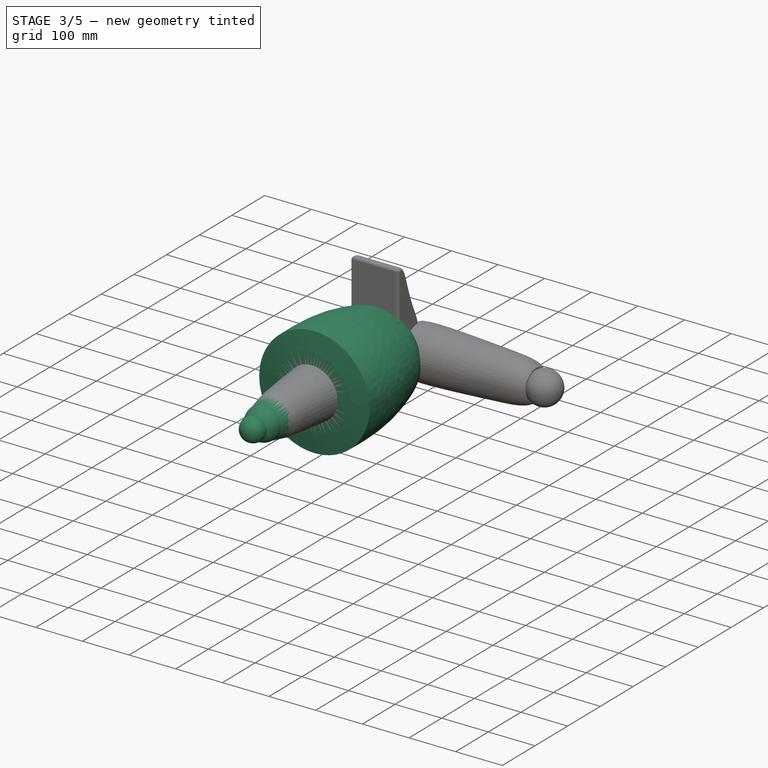
[diagram: stage 3 of 5 — iso view after this stage's code; geometry added in this stage tinted green]
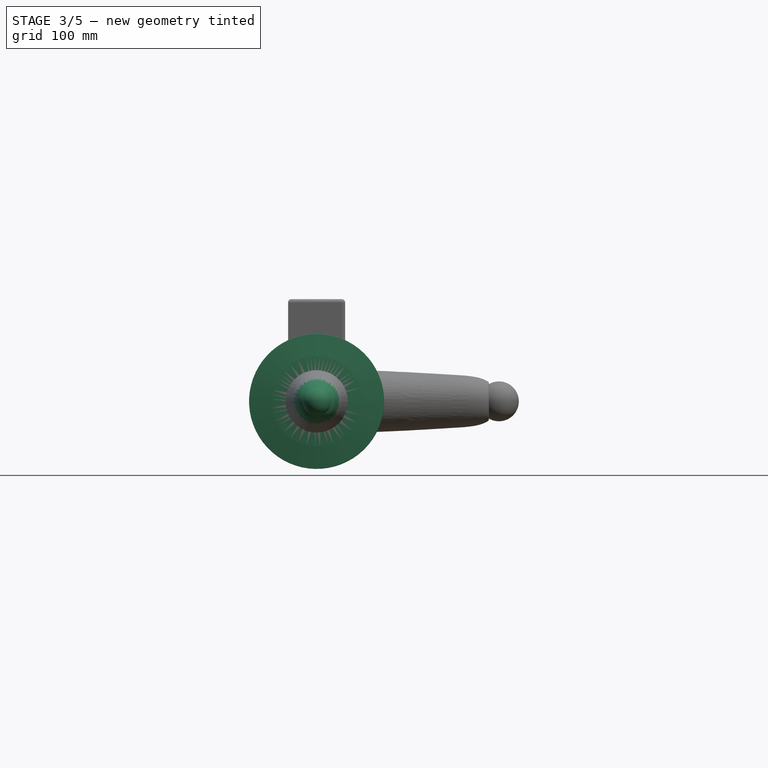
[diagram: stage 3 of 5 — front view after this stage's code; geometry added in this stage tinted green]
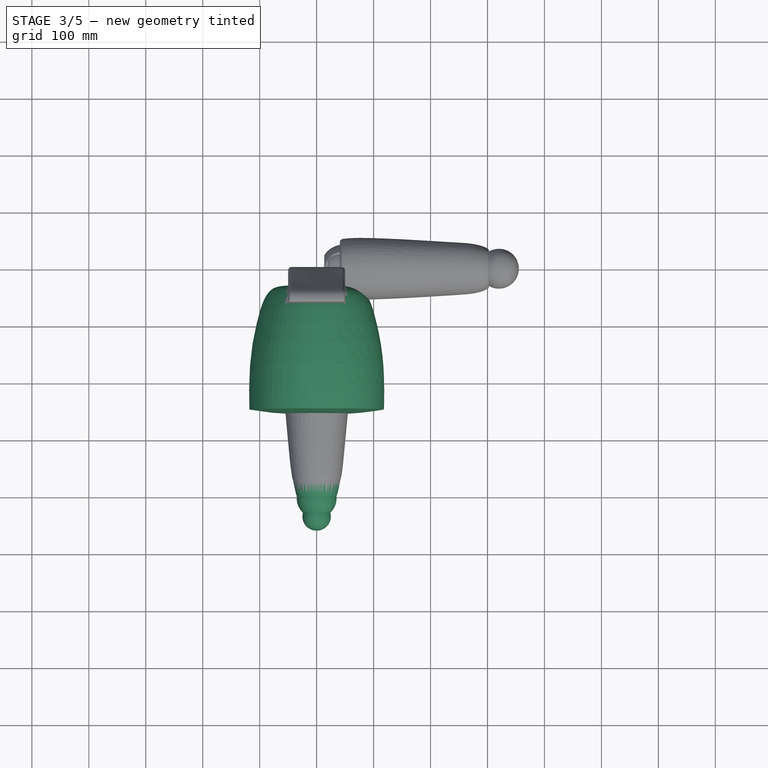
[diagram: stage 3 of 5 — top view after this stage's code; geometry added in this stage tinted green]
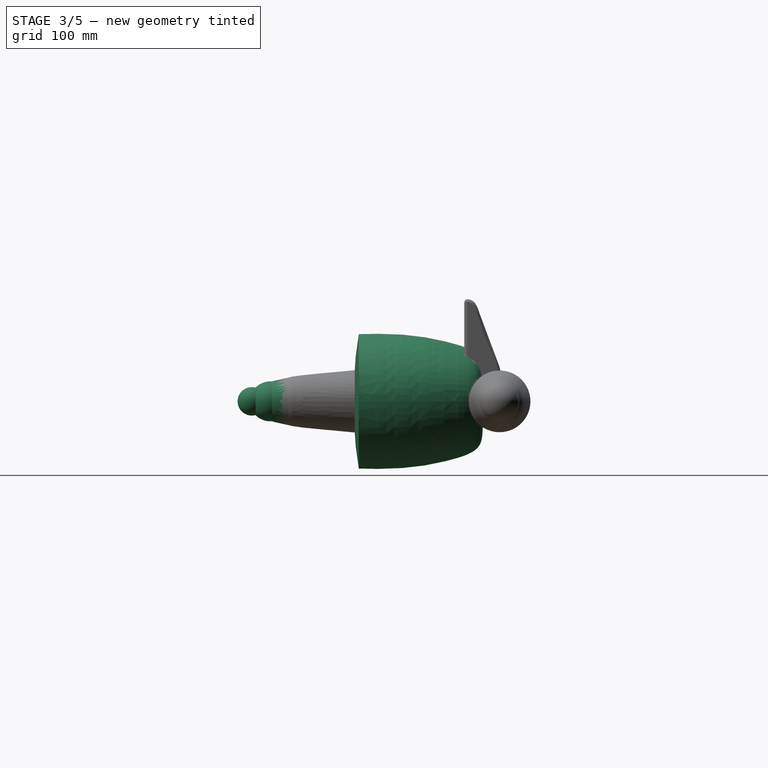
[diagram: stage 3 of 5 — right view after this stage's code; geometry added in this stage tinted green]
FEATURE [PartDesign::Body] Body020  label="Chest"
  Group = -> [Sketch062,Revolution034,Sketch065,Pocket010,Sketch066,Pocket011,Sketch067,Groove027,Fillet028,Sketch068,Groove028,Fillet029,Sketch069,Groove029,Fillet030,Revolution035,Revolution036,Revolution037,Local_CS028,Local_CS029,Local_CS030,Local_CS031]
  Origin = -> Origin022
  Placement = pos=(0,1197.02,0.39) rot=(0,0,1;0rad)
  Tip = -> Revolution037
  expr: .Placement.Base.y = 1197.02 * <<Parameters>>.body_tall
  expr: .Placement.Base.z = 0.39 * <<Parameters>>.body_width
FEATURE [Sketcher::SketchObject] Sketch070
  FullyConstrained = true
  MapMode = 5
  Support = -> [XY_Plane023]
  expr: Constraints[36] = 29.43 * <<Parameters>>.body_tall
  expr: Constraints[37] = 226.64 * <<Parameters>>.body_tall
  expr: Constraints[38] = 51.37 * <<Parameters>>.body_width
  expr: Constraints[39] = 80.08 * <<Parameters>>.body_width
  expr: Constraints[40] = 103.62 * <<Parameters>>.body_width
  expr: Constraints[41] = 116.67 * <<Parameters>>.body_width
  expr: Constraints[42] = 118.09 * <<Parameters>>.body_width
  expr: Constraints[43] = 41.88 * <<Parameters>>.body_width
  expr: Constraints[44] = 78.94 * <<Parameters>>.body_width
  expr: Constraints[45] = 7.06 * <<Parameters>>.body_tall
  expr: Constraints[46] = 247.15 * <<Parameters>>.body_tall
  expr: Constraints[47] = 164.26 * <<Parameters>>.body_tall
  expr: Constraints[48] = 89.14 * <<Parameters>>.body_tall
  expr: Constraints[49] = 37.35 * <<Parameters>>.body_tall
  expr: Constraints[50] = 0.82 * <<Parameters>>.body_width
  expr: Constraints[51] = 20.08 * <<Parameters>>.body_tall
  sketch-geometry (21):
    g0: LineSegment StartX=0 StartY=-29.43 StartZ=0 EndX=0 EndY=-256.07 EndZ=0
    g1-g7: Circle x7 (B-spline internal-alignment scaffolding for g8; pole/knot coordinates omitted)
    g8: BSplineCurve PolesCount=7 KnotsCount=5 Degree=3 IsPeriodic=0
    g9-g13: GeomPoint x5 (B-spline internal-alignment scaffolding for g8; pole/knot coordinates omitted)
    g14-g17: Circle x4 (B-spline internal-alignment scaffolding for g18; pole/knot coordinates omitted)
    g18: BSplineCurve PolesCount=4 KnotsCount=2 Degree=3 IsPeriodic=0
    g19: GeomPoint X=118.09 Y=-247.15 Z=0
    g20: GeomPoint X=0 Y=-256.07 Z=0
  constraints (34):
    c: PointOnObject(g0,g-2)
    c: Vertical(g0)
    c: Weight(g1) = 1
    c: Coincident(g8,g0)
    c: Equal(g1, g2-g7) x6
    c: InternalAlignment(g1-g7 -> g8) x7
    c: InternalAlignment(g9-g13 -> g8) x5
    c: Weight(g14) = 1
    c: Coincident(g18,g8)
    c: Equal(g14,g15)
    c: Equal(g14,g16)
    c: Equal(g14,g17)
    c: Coincident(g18,g0)
    c: InternalAlignment(g14-g17 -> g18) x4
    c: InternalAlignment(g19,g18)
    c: InternalAlignment(g20,g18)
    c: Horizontal(g16,g0)
    c: Horizontal(g0,g2)
    c: DistanceY(g0,g-1) = 29.43
    c: DistanceY(g0,g0) = 226.64
    c: DistanceX(g-1,g2) = 51.37
    c: DistanceX(g-1,g10) = 80.08
    c: DistanceX(g-1,g11) = 103.62
    c: DistanceX(g-1,g12) = 116.67
    c: DistanceX(g-1,g8) = 118.09
    c: DistanceX(g0,g16) = 41.88
    c: DistanceX(g0,g15) = 78.94
    c: DistanceY(g15,g8) = 7.06
    c: DistanceY(g8,g-1) = 247.15
    c: DistanceY(g12,g-1) = 164.26
    c: DistanceY(g11,g-1) = 89.14
    c: DistanceY(g10,g-1) = 37.35
    c: DistanceX(g8,g6) = 0.82
    c: DistanceY(g8,g6) = 20.08
FEATURE [PartDesign::Revolution] Revolution038  label="Main body of hip"
  Angle = 360
  Axis = (0,1,0)
  Base = (0,0,0)
  Profile = -> Sketch070
  ReferenceAxis = -> Sketch070 [V_Axis]
  Reversed = true
FEATURE [PartDesign::CoordinateSystem] Local_CS051  label="Right Thigh/Big joint LCS"
  AttacherType = Attacher::AttachEngine3D
  MapMode = 2
  Support = -> [Revolution054]
FEATURE [PartDesign::CoordinateSystem] Local_CS052  label="Right Thigh/Knee LCS"
  AttacherType = Attacher::AttachEngine3D
  AttachmentOffset = pos=(0,-403,0) rot=(0,0,1;0rad)
  MapMode = 2
  Placement = pos=(0,-403,0) rot=(0,0,1;0rad)
  Support = -> [Revolution054]
FEATURE [Sketcher::SketchObject] Sketch104
  FullyConstrained = true
  MapMode = 5
  Support = -> [XY_Plane033]
  expr: Constraints[5] = 60 * <<Parameters>>.leg_tall
  sketch-geometry (2):
    g0: LineSegment StartX=0 StartY=60 StartZ=0 EndX=0 EndY=-60 EndZ=0
    g1: ArcOfCircle CenterX=0 CenterY=0 CenterZ=0 NormalX=0 NormalY=0 NormalZ=1 AngleXU=0 Radius=60 StartAngle=4.71239 EndAngle=7.85398
  constraints (6):
    c: Vertical(g0)
    c: PointOnObject(g1,g0)
    c: Coincident(g1,g0)
    c: Coincident(g1,g0)
    c: Coincident(g1,g-1)
    c: Radius(g1) = 60
FEATURE [PartDesign::Groove] Groove047  label="R Big joint"
  Angle = 360
  Axis = (0,1,0)
  Base = (0,0,0)
  BaseFeature = -> Revolution054
  Profile = -> Sketch104
  ReferenceAxis = -> Sketch104 [V_Axis]
FEATURE [PartDesign::Fillet] Fillet048
  Base = -> Groove047 [Edge1]
  BaseFeature = -> Groove047
  Radius = 6
  SupportTransform = false
  UseAllEdges = false
FEATURE [Sketcher::SketchObject] Sketch105
  FullyConstrained = true
  MapMode = 5
  Support = -> [XY_Plane033]
  expr: Constraints[5] = 403 * <<Parameters>>.leg_tall
  expr: Constraints[6] = 35 * <<Parameters>>.leg_tall
  sketch-geometry (2):
    g0: LineSegment StartX=0 StartY=-368 StartZ=0 EndX=0 EndY=-438 EndZ=0
    g1: ArcOfCircle CenterX=0 CenterY=-403 CenterZ=0 NormalX=0 NormalY=0 NormalZ=1 AngleXU=0 Radius=35 StartAngle=4.71239 EndAngle=7.85398
  constraints (7):
    c: Vertical(g0)
    c: PointOnObject(g1,g0)
    c: Coincident(g1,g0)
    c: Coincident(g1,g0)
    c: PointOnObject(g1,g-2)
    c: DistanceY(g1,g-1) = 403
    c: Radius(g1) = 35
FEATURE [PartDesign::Groove] Groove048  label="R Knee cut"
  Angle = 360
  Axis = (0,1,0)
  Base = (0,0,0)
  BaseFeature = -> Fillet048
  Profile = -> Sketch105
  ReferenceAxis = -> Sketch105 [V_Axis]
FEATURE [PartDesign::Fillet] Fillet049
  Base = -> Groove048 [Edge1]
  BaseFeature = -> Groove048
  Radius = 3
  SupportTransform = false
  UseAllEdges = false
FEATURE [PartDesign::Revolution] Revolution055  label="R Knee"
  Angle = 360
  Axis = (0,1,0)
  Base = (0,0,0)
  BaseFeature = -> Fillet049
  Profile = -> Sketch105
  ReferenceAxis = -> Sketch105 [V_Axis]
  Reversed = true
FEATURE [PartDesign::Body] Body031  label="Right Thigh"
  Group = -> [Sketch103,Revolution054,Sketch104,Groove047,Fillet048,Sketch105,Groove048,Fillet049,Revolution055,Local_CS051,Local_CS052]
  Origin = -> Origin033
  Placement = pos=(-75,899.02,0.39) rot=(-1,0,0;0.069813rad)
  Tip = -> Revolution055
  expr: .Placement.Base.x = -75 * <<Parameters>>.leg_width
  expr: .Placement.Base.y = 899.02 * <<Parameters>>.leg_tall
  expr: .Placement.Base.z = 0.39 * <<Parameters>>.leg_width
FEATURE [Sketcher::SketchObject] Sketch106
  FullyConstrained = true
  MapMode = 5
  Support = -> [XY_Plane034]
  expr: Constraints[23] = 428.77 * <<Parameters>>.leg_tall
  expr: Constraints[24] = 3.06 * <<Parameters>>.leg_tall
  expr: Constraints[25] = 37.13 * <<Parameters>>.leg_width
  expr: Constraints[26] = 11.66 * <<Parameters>>.leg_tall
  expr: Constraints[27] = 33.18 * <<Parameters>>.leg_width
  expr: Constraints[29] = 98.15 * <<Parameters>>.leg_tall
  expr: Constraints[30] = 46.59 * <<Parameters>>.leg_width
  expr: Constraints[31] = 52.12 * <<Parameters>>.leg_width
  expr: Constraints[32] = 45.78 * <<Parameters>>.leg_width
  expr: Constraints[33] = 52.13 * <<Parameters>>.leg_tall
  expr: Constraints[34] = 192.23 * <<Parameters>>.leg_tall
  sketch-geometry (14):
    g0: LineSegment StartX=0 StartY=0 StartZ=0 EndX=0 EndY=-428.77 EndZ=0
    g1-g7: Circle x7 (B-spline internal-alignment scaffolding for g8; pole/knot coordinates omitted)
    g8: BSplineCurve PolesCount=7 KnotsCount=5 Degree=3 IsPeriodic=0
    g9-g13: GeomPoint x5 (B-spline internal-alignment scaffolding for g8; pole/knot coordinates omitted)
  constraints (20):
    c: Vertical(g0)
    c: PointOnObject(g0,g-2)
    c: Weight(g1) = 1
    c: Coincident(g8,g0)
    c: Equal(g1, g2-g7) x6
    c: Coincident(g8,g0)
    c: InternalAlignment(g1-g7 -> g8) x7
    c: InternalAlignment(g9-g13 -> g8) x5
    c: DistanceY(g0,g0) = 428.77
    c: DistanceY(g0,g2) = 3.06
    c: DistanceX(g0,g2) = 37.13
    c: DistanceY(g6,g0) = 11.66
    c: DistanceX(g0,g6) = 33.18
    c: PointOnObject(g0,g-1)
    c: DistanceY(g0,g12) = 98.15
    c: DistanceX(g0,g12) = 46.59
    c: DistanceX(g0,g11) = 52.12
    c: DistanceX(g0,g10) = 45.78
    c: DistanceY(g10,g0) = 52.13
    c: DistanceY(g11,g0) = 192.23
FEATURE [PartDesign::Revolution] Revolution056  label="R Shin main body"
  Angle = 360
  Axis = (0,1,0)
  Base = (0,0,0)
  Profile = -> Sketch106
  ReferenceAxis = -> Sketch106 [V_Axis]
  Reversed = true
FEATURE [PartDesign::CoordinateSystem] Local_CS053  label="Right Shin/Knee"
  AttacherType = Attacher::AttachEngine3D
  MapMode = 2
  Support = -> [Revolution056]
FEATURE [PartDesign::CoordinateSystem] Local_CS054  label="Right Shin/Ankle"
  AttacherType = Attacher::AttachEngine3D
  AttachmentOffset = pos=(0,-435,0) rot=(0,0,1;0rad)
  MapMode = 2
  Placement = pos=(0,-435,0) rot=(0,0,1;0rad)
  Support = -> [Revolution056]
FEATURE [Sketcher::SketchObject] Sketch107
  FullyConstrained = true
  MapMode = 5
  Support = -> [XY_Plane034]
  expr: Constraints[5] = 35 * <<Parameters>>.leg_tall
  sketch-geometry (2):
    g0: LineSegment StartX=0 StartY=35 StartZ=0 EndX=0 EndY=-35 EndZ=0
    g1: ArcOfCircle CenterX=0 CenterY=0 CenterZ=0 NormalX=0 NormalY=0 NormalZ=1 AngleXU=0 Radius=35 StartAngle=4.71239 EndAngle=7.85398
  constraints (6):
    c: PointOnObject(g1,g0)
    c: Coincident(g1,g0)
    c: Coincident(g1,g0)
    c: Vertical(g0)
    c: Coincident(g1,g-1)
    c: Radius(g1) = 35
FEATURE [PartDesign::Groove] Groove049  label="R knee cut"
  Angle = 360
  Axis = (0,1,0)
  Base = (0,0,0)
  BaseFeature = -> Revolution056
  Profile = -> Sketch107
  ReferenceAxis = -> Sketch107 [V_Axis]
FEATURE [PartDesign::Fillet] Fillet050
  Base = -> Groove049 [Edge1]
  BaseFeature = -> Groove049
  Radius = 3
  SupportTransform = false
  UseAllEdges = false
FEATURE [Sketcher::SketchObject] Sketch108
  FullyConstrained = true
  MapMode = 5
  Support = -> [XY_Plane034]
  expr: Constraints[5] = 435 * <<Parameters>>.leg_tall
  expr: Constraints[6] = 25 * <<Parameters>>.leg_tall
  sketch-geometry (2):
    g0: LineSegment StartX=0 StartY=-410 StartZ=0 EndX=0 EndY=-460 EndZ=0
    g1: ArcOfCircle CenterX=0 CenterY=-435 CenterZ=0 NormalX=0 NormalY=0 NormalZ=1 AngleXU=0 Radius=25 StartAngle=4.71239 EndAngle=7.85398
  constraints (7):
    c: Vertical(g0)
    c: PointOnObject(g1,g0)
    c: Coincident(g1,g0)
    c: Coincident(g1,g0)
    c: PointOnObject(g1,g-2)
    c: DistanceY(g1,g-1) = 435
    c: Radius(g1) = 25
FEATURE [PartDesign::Groove] Groove050  label="R Ankle cut"
  Angle = 360
  Axis = (0,1,0)
  Base = (0,0,0)
  BaseFeature = -> Fillet050
  Profile = -> Sketch108
  ReferenceAxis = -> Sketch108 [V_Axis]
FEATURE [PartDesign::Fillet] Fillet051
  Base = -> Groove050 [Edge3]
  BaseFeature = -> Groove050
  Radius = 3
  SupportTransform = false
  UseAllEdges = false
FEATURE [PartDesign::Revolution] Revolution057  label="R Ankle"
  Angle = 360
  Axis = (0,1,0)
  Base = (0,0,0)
  BaseFeature = -> Fillet051
  Profile = -> Sketch108
  ReferenceAxis = -> Sketch108 [V_Axis]
  Reversed = true
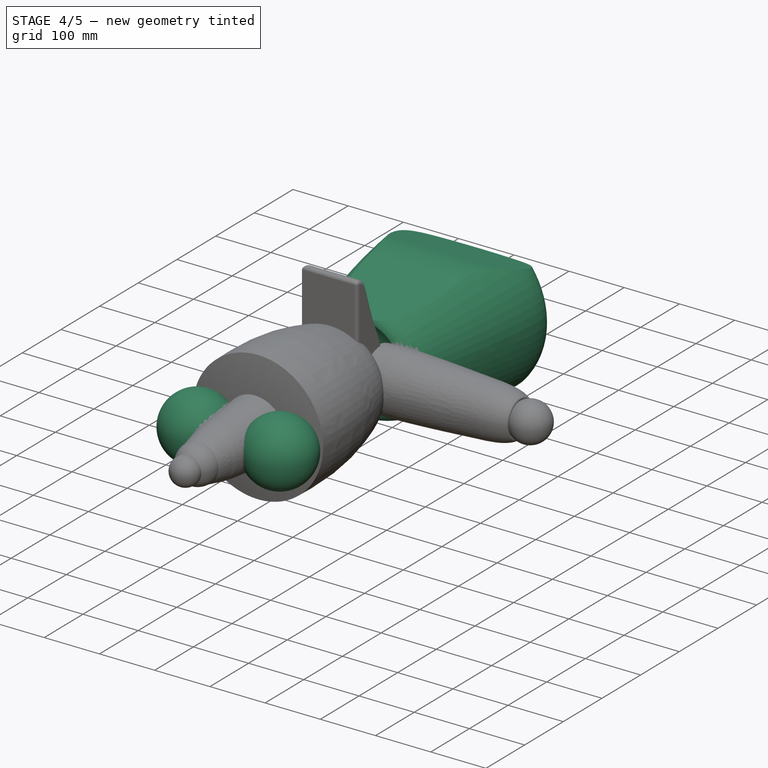
[diagram: stage 4 of 5 — iso view after this stage's code; geometry added in this stage tinted green]
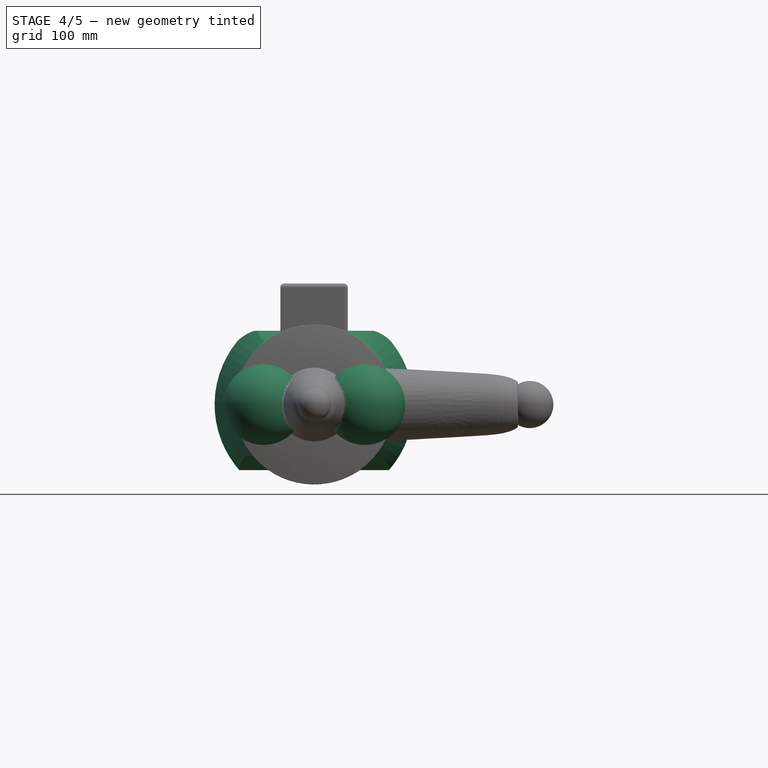
[diagram: stage 4 of 5 — front view after this stage's code; geometry added in this stage tinted green]
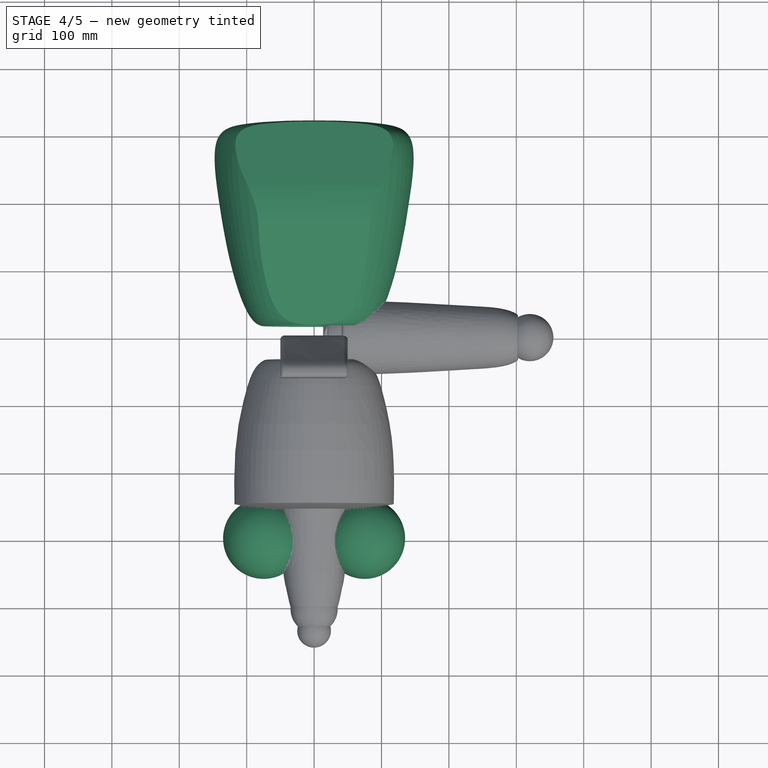
[diagram: stage 4 of 5 — top view after this stage's code; geometry added in this stage tinted green]
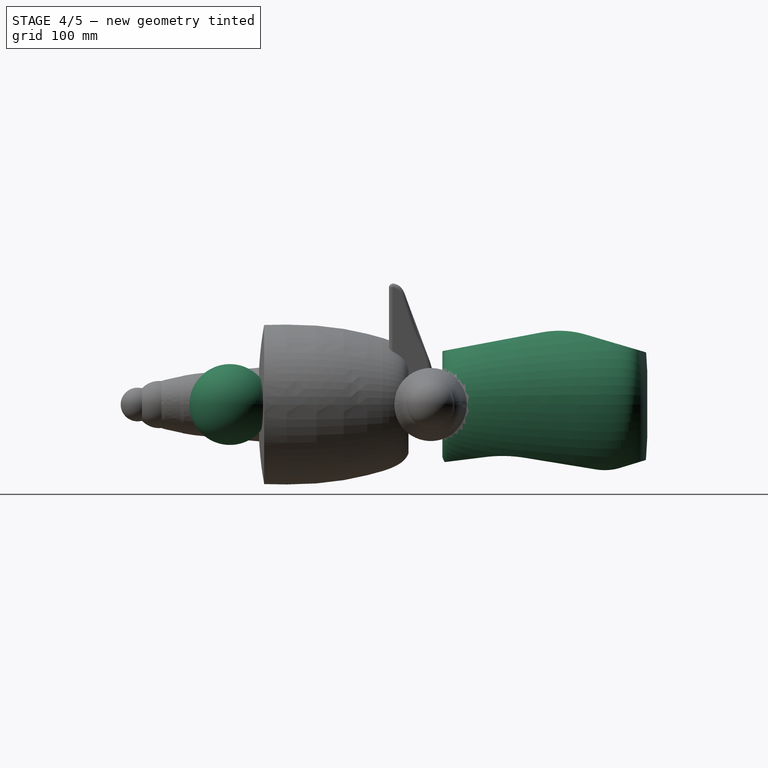
[diagram: stage 4 of 5 — right view after this stage's code; geometry added in this stage tinted green]
FEATURE [PartDesign::CoordinateSystem] Local_CS033  label="Head/Neck LCS"
  AttacherType = Attacher::AttachEngine3D
  MapMode = 2
  Support = -> [Revolution033]
FEATURE [Sketcher::SketchObject] Sketch062
  FullyConstrained = true
  MapMode = 5
  Support = -> [XY_Plane022]
  expr: Constraints[31] = 20.37 * <<Parameters>>.body_tall
  expr: Constraints[32] = 301.65 * <<Parameters>>.body_tall
  expr: Constraints[33] = 53.47 * <<Parameters>>.body_width
  expr: Constraints[34] = 55.79 * <<Parameters>>.body_width
  expr: Constraints[35] = 87.63 * <<Parameters>>.body_width
  expr: Constraints[36] = 122.23 * <<Parameters>>.body_width
  expr: Constraints[37] = 140.69 * <<Parameters>>.body_width
  expr: Constraints[38] = 144.88 * <<Parameters>>.body_width
  expr: Constraints[39] = 100.18 * <<Parameters>>.body_width
  expr: Constraints[40] = 317.1 * <<Parameters>>.body_tall
  expr: Constraints[41] = 290.2 * <<Parameters>>.body_tall
  expr: Constraints[42] = 199.24 * <<Parameters>>.body_tall
  expr: Constraints[43] = 103.65 * <<Parameters>>.body_tall
  expr: Constraints[44] = 22.49 * <<Parameters>>.body_tall
  sketch-geometry (18):
    g0: LineSegment StartX=0 StartY=322.02 StartZ=0 EndX=0 EndY=20.37 EndZ=0
    g1-g9: Circle x9 (B-spline internal-alignment scaffolding for g10; pole/knot coordinates omitted)
    g10: BSplineCurve PolesCount=9 KnotsCount=7 Degree=3 IsPeriodic=0
    g11-g17: GeomPoint x7 (B-spline internal-alignment scaffolding for g10; pole/knot coordinates omitted)
  constraints (24):
    c: Vertical(g0)
    c: PointOnObject(g0,g-2)
    c: Weight(g1) = 1
    c: Coincident(g10,g0)
    c: Equal(g1, g2-g9) x8
    c: Coincident(g10,g0)
    c: InternalAlignment(g1-g9 -> g10) x9
    c: InternalAlignment(g11-g17 -> g10) x7
    c: Horizontal(g0,g2)
    c: Horizontal(g0,g8)
    c: DistanceY(g-1,g0) = 20.37
    c: DistanceY(g0,g0) = 301.65
    c: DistanceX(g0,g2) = 53.47
    c: DistanceX(g0,g8) = 55.79
    c: DistanceX(g-1,g16) = 87.63
    c: DistanceX(g-1,g15) = 122.23
    c: DistanceX(g-1,g14) = 140.69
    c: DistanceX(g-1,g13) = 144.88
    c: DistanceX(g-1,g12) = 100.18
    c: DistanceY(g-1,g12) = 317.1
    c: DistanceY(g-1,g13) = 290.2
    c: DistanceY(g-1,g14) = 199.24
    c: DistanceY(g-1,g15) = 103.65
    c: DistanceY(g-1,g16) = 22.49
FEATURE [PartDesign::Revolution] Revolution034  label="Base shape"
  Angle = 360
  Axis = (0,1,0)
  Base = (0,0,0)
  Profile = -> Sketch062
  ReferenceAxis = -> Sketch062 [V_Axis]
  Reversed = true
FEATURE [PartDesign::Body] Body019  label="Head"
  Group = -> [Sketch061,Revolution033,Sketch063,Groove026,Sketch064,Pocket009,Fillet027,Local_CS033]
  Origin = -> Origin021
  Placement = pos=(0,1551.02,0.39) rot=(0,0,1;0rad)
  Tip = -> Fillet027
  expr: .Placement.Base.y = 1551.02 * <<Parameters>>.head_tall
  expr: .Placement.Base.z = 0.39 * <<Parameters>>.head_width
FEATURE [Sketcher::SketchObject] Sketch065
  FullyConstrained = true
  MapMode = 5
  Placement = pos=(0,0,0) rot=(0.57735,0.57735,0.57735;2.0944rad)
  Support = -> [YZ_Plane022]
  expr: Constraints[10] = 140 * <<Parameters>>.body_width
  expr: Constraints[11] = 76.06 * <<Parameters>>.body_width
  expr: Constraints[12] = 75.14 * <<Parameters>>.body_width
  expr: Constraints[13] = 190.59 * <<Parameters>>.body_tall
  expr: Constraints[14] = 30.55 * <<Parameters>>.body_width
  expr: Constraints[15] = 181.81 * <<Parameters>>.body_width
  expr: Constraints[16] = 327.12 * <<Parameters>>.body_tall
  sketch-geometry (6):
    g0: LineSegment StartX=0 StartY=76.06 StartZ=0 EndX=164.714 EndY=107.038 EndZ=0
    g1: LineSegment StartX=230.2 StartY=103.73 StartZ=0 EndX=327.12 EndY=75.14 EndZ=0
    g2: LineSegment StartX=327.12 StartY=75.14 StartZ=0 EndX=327.12 EndY=181.81 EndZ=0
    g3: LineSegment StartX=327.12 StartY=181.81 StartZ=0 EndX=0 EndY=181.81 EndZ=0
    g4: LineSegment StartX=0 StartY=181.81 StartZ=0 EndX=0 EndY=76.06 EndZ=0
    g5: ArcOfCircle CenterX=190.59 CenterY=-30.55 CenterZ=0 NormalX=0 NormalY=0 NormalZ=1 AngleXU=0 Radius=140 StartAngle=1.28395 EndAngle=1.7567
  constraints (17):
    c: Coincident(g1,g2)
    c: Vertical(g2)
    c: Coincident(g2,g3)
    c: Horizontal(g3)
    c: Coincident(g3,g4)
    c: Coincident(g4,g0)
    c: Vertical(g4)
    c: PointOnObject(g3,g-2)
    c: Tangent(g1,g5) = 1.5708
    c: Tangent(g0,g5) = 1.5708
    c: Radius(g5) = 140
    c: DistanceY(g-1,g0) = 76.06
    c: DistanceY(g-1,g1) = 75.14
    c: DistanceX(g-1,g5) = 190.59
    c: DistanceY(g5,g-1) = 30.55
    c: DistanceY(g-1,g2) = 181.81
    c: DistanceX(g-1,g2) = 327.12
FEATURE [PartDesign::Pocket] Pocket010  label="Front cut"
  BaseFeature = -> Revolution034
  Direction = (-1,2e-16,-3e-16)
  Length = 5
  Length2 = 5
  Midplane = true
  Profile = -> Sketch065
  ReferenceAxis = -> Sketch065 [N_Axis]
  Type = 1
FEATURE [Sketcher::SketchObject] Sketch066
  FullyConstrained = true
  MapMode = 5
  Placement = pos=(0,0,0) rot=(0.57735,0.57735,0.57735;2.0944rad)
  Support = -> [YZ_Plane022]
  expr: Constraints[12] = 341.01 * <<Parameters>>.body_tall
  expr: Constraints[13] = 106.37 * <<Parameters>>.body_tall
  expr: Constraints[14] = 258.07 * <<Parameters>>.body_tall
  expr: Constraints[15] = 75.58 * <<Parameters>>.body_width
  expr: Constraints[16] = 87.99 * <<Parameters>>.body_width
  expr: Constraints[17] = 17.61 * <<Parameters>>.body_width
  expr: Constraints[18] = 280.35 * <<Parameters>>.body_width
  expr: Constraints[19] = 204.03 * <<Parameters>>.body_width
  expr: Constraints[20] = 79.73 * <<Parameters>>.body_width
  expr: Constraints[21] = 197 * <<Parameters>>.body_width
  sketch-geometry (8):
    g0: LineSegment StartX=0 StartY=-87.99 StartZ=0 EndX=81.1577 EndY=-77.8838 EndZ=0
    g1: LineSegment StartX=139.264 StartY=-78.989 StartZ=0 EndX=245.216 EndY=-96.297 EndZ=0
    g2: LineSegment StartX=281.434 StartY=-93.8398 StartZ=0 EndX=341.01 EndY=-75.58 EndZ=0
    g3: LineSegment StartX=341.01 StartY=-75.58 StartZ=0 EndX=341.01 EndY=-197 EndZ=0
    g4: LineSegment StartX=341.01 StartY=-197 StartZ=0 EndX=0 EndY=-197 EndZ=0
    g5: LineSegment StartX=0 StartY=-197 StartZ=0 EndX=0 EndY=-87.99 EndZ=0
    g6: ArcOfCircle CenterX=106.37 CenterY=-280.35 CenterZ=0 NormalX=0 NormalY=0 NormalZ=1 AngleXU=0 Radius=204.03 StartAngle=1.40887 EndAngle=1.69468
    g7: ArcOfCircle CenterX=258.07 CenterY=-17.61 CenterZ=0 NormalX=0 NormalY=0 NormalZ=1 AngleXU=0 Radius=79.73 StartAngle=4.55046 EndAngle=5.0098
  constraints (22):
    c: Coincident(g2,g3)
    c: Coincident(g3,g4)
    c: Horizontal(g4)
    c: Coincident(g4,g5)
    c: Coincident(g5,g0)
    c: Vertical(g5)
    c: Vertical(g3)
    c: PointOnObject(g4,g-2)
    c: Tangent(g1,g6) = 1.5708
    c: Tangent(g0,g6) = 1.5708
    c: Tangent(g1,g7) = -1.5708
    c: Tangent(g2,g7) = -1.5708
    c: DistanceX(g-1,g3) = 341.01
    c: DistanceX(g-1,g6) = 106.37
    c: DistanceX(g-1,g7) = 258.07
    c: DistanceY(g2,g-1) = 75.58
    c: DistanceY(g0,g-1) = 87.99
    c: DistanceY(g7,g-1) = 17.61
    c: DistanceY(g6,g-1) = 280.35
    c: Radius(g6) = 204.03
    c: Radius(g7) = 79.73
    c: DistanceY(g4,g-1) = 197
FEATURE [PartDesign::Pocket] Pocket011  label="Back cut"
  BaseFeature = -> Pocket010
  Direction = (-1,2e-16,-3e-16)
  Length = 5
  Length2 = 5
  Midplane = true
  Profile = -> Sketch066
  ReferenceAxis = -> Sketch066 [N_Axis]
  Type = 1
FEATURE [Sketcher::SketchObject] Sketch067
  FullyConstrained = true
  MapMode = 5
  Support = -> [XY_Plane022]
  expr: Constraints[5] = 55 * <<Parameters>>.Neck_tall
  expr: Constraints[6] = 354 * <<Parameters>>.body_tall
  sketch-geometry (2):
    g0: LineSegment StartX=0 StartY=409 StartZ=0 EndX=0 EndY=299 EndZ=0
    g1: ArcOfCircle CenterX=0 CenterY=354 CenterZ=0 NormalX=0 NormalY=0 NormalZ=1 AngleXU=0 Radius=55 StartAngle=4.71239 EndAngle=7.85398
  constraints (7):
    c: Vertical(g0)
    c: PointOnObject(g1,g0)
    c: Coincident(g1,g0)
    c: PointOnObject(g1,g-2)
    c: Coincident(g1,g0)
    c: Radius(g1) = 55
    c: DistanceY(g-1,g1) = 354
FEATURE [PartDesign::Groove] Groove027  label="Neck cut"
  Angle = 360
  Axis = (0,1,0)
  Base = (0,0,0)
  BaseFeature = -> Pocket011
  Profile = -> Sketch067
  ReferenceAxis = -> Sketch067 [V_Axis]
FEATURE [PartDesign::Fillet] Fillet028  label="Neck fillet"
  Base = -> Groove027 [Edge1]
  BaseFeature = -> Groove027
  Radius = 6
  SupportTransform = false
  UseAllEdges = false
FEATURE [Sketcher::SketchObject] Sketch068
  FullyConstrained = true
  MapMode = 5
  Support = -> [XY_Plane022]
  expr: Constraints[5] = 75 * <<Parameters>>.body_width
  sketch-geometry (2):
    g0: LineSegment StartX=0 StartY=75 StartZ=0 EndX=0 EndY=-75 EndZ=0
    g1: ArcOfCircle CenterX=0 CenterY=0 CenterZ=0 NormalX=0 NormalY=0 NormalZ=1 AngleXU=0 Radius=75 StartAngle=4.71239 EndAngle=7.85398
  constraints (6):
    c: Vertical(g0)
    c: Coincident(g1,g-1)
    c: Coincident(g1,g0)
    c: Coincident(g1,g0)
    c: PointOnObject(g0,g-2)
    c: Radius(g1) = 75
FEATURE [PartDesign::Groove] Groove028  label="Waist cut"
  Angle = 360
  Axis = (0,1,0)
  Base = (0,0,0)
  BaseFeature = -> Fillet028
  Profile = -> Sketch068
  ReferenceAxis = -> Sketch068 [V_Axis]
FEATURE [PartDesign::Fillet] Fillet029  label="Waist fillet"
  Base = -> Groove028 [Edge3]
  BaseFeature = -> Groove028
  Radius = 5
  SupportTransform = false
  UseAllEdges = false
FEATURE [PartDesign::CoordinateSystem] Local_CS032  label="Hip/Waist LCS"
  AttacherType = Attacher::AttachEngine3D
  MapMode = 2
  Support = -> [Revolution038]
FEATURE [PartDesign::CoordinateSystem] Local_CS034  label="Hip/Leg joint left"
  AttacherType = Attacher::AttachEngine3D
  AttachmentOffset = pos=(75,-298,0) rot=(0,0,1;0rad)
  MapMode = 2
  Placement = pos=(75,-298,0) rot=(0,0,1;0rad)
  Support = -> [Revolution038]
FEATURE [PartDesign::CoordinateSystem] Local_CS035  label="Hip/Leg joint right"
  AttacherType = Attacher::AttachEngine3D
  AttachmentOffset = pos=(-75,-298,0) rot=(0,0,1;0rad)
  MapMode = 2
  Placement = pos=(-75,-298,0) rot=(0,0,1;0rad)
  Support = -> [Revolution038]
FEATURE [Sketcher::SketchObject] Sketch071
  FullyConstrained = true
  MapMode = 5
  Support = -> [XY_Plane023]
  expr: Constraints[5] = 75 * <<Parameters>>.body_tall
  sketch-geometry (2):
    g0: LineSegment StartX=0 StartY=75 StartZ=0 EndX=0 EndY=-75 EndZ=0
    g1: ArcOfCircle CenterX=0 CenterY=0 CenterZ=0 NormalX=0 NormalY=0 NormalZ=1 AngleXU=0 Radius=75 StartAngle=4.71239 EndAngle=7.85398
  constraints (6):
    c: Vertical(g0)
    c: PointOnObject(g1,g0)
    c: Coincident(g1,g0)
    c: Coincident(g1,g0)
    c: Coincident(g1,g-1)
    c: Radius(g1) = 75
FEATURE [PartDesign::Groove] Groove030  label="Waist cut of hip"
  Angle = 360
  Axis = (0,1,0)
  Base = (0,0,0)
  BaseFeature = -> Revolution038
  Profile = -> Sketch071
  ReferenceAxis = -> Sketch071 [V_Axis]
FEATURE [PartDesign::Fillet] Fillet031  label="waist"
  Base = -> Groove030 [Edge4]
  BaseFeature = -> Groove030
  Radius = 6
  SupportTransform = false
  UseAllEdges = false
FEATURE [Sketcher::SketchObject] Sketch072
  FullyConstrained = true
  MapMode = 5
  Support = -> [XY_Plane023]
  expr: Constraints[13] = 75 * <<Parameters>>.body_width
  expr: Constraints[4] = 75 * <<Parameters>>.body_width
  expr: Constraints[5] = 298 * <<Parameters>>.body_tall
  expr: Constraints[6] = 60 * <<Parameters>>.body_tall
  sketch-geometry (4):
    g0: LineSegment StartX=15 StartY=-298 StartZ=0 EndX=135 EndY=-298 EndZ=0
    g1: ArcOfCircle CenterX=75 CenterY=-298 CenterZ=0 NormalX=0 NormalY=0 NormalZ=1 AngleXU=0 Radius=60 StartAngle=0 EndAngle=3.14159
    g2: LineSegment StartX=-135 StartY=-298 StartZ=0 EndX=-15 EndY=-298 EndZ=0
    g3: ArcOfCircle CenterX=-75 CenterY=-298 CenterZ=0 NormalX=0 NormalY=0 NormalZ=1 AngleXU=0 Radius=60 StartAngle=0 EndAngle=3.14159
  constraints (14):
    c: PointOnObject(g1,g0)
    c: Coincident(g1,g0)
    c: Coincident(g1,g0)
    c: Horizontal(g0)
    c: DistanceX(g-1,g1) = 75
    c: DistanceY(g1,g-1) = 298
    c: Radius(g1) = 60
    c: Horizontal(g2)
    c: PointOnObject(g3,g2)
    c: Coincident(g3,g2)
    c: Coincident(g3,g2)
    c: Horizontal(g2,g0)
    c: Equal(g3,g1)
    c: DistanceX(g3,g-1) = 75
FEATURE [PartDesign::Groove] Groove031  label="Hip joints cuts"
  Angle = 360
  Axis = (1,0,0)
  Base = (15,-298,0)
  BaseFeature = -> Fillet031
  Profile = -> Sketch072
  ReferenceAxis = -> Sketch072 [Edge1]
FEATURE [PartDesign::Revolution] Revolution039  label="Hip joints"
  Angle = 360
  Axis = (1,0,0)
  Base = (15,-298,0)
  BaseFeature = -> Groove031
  Profile = -> Sketch072
  ReferenceAxis = -> Sketch072 [Edge1]
  Reversed = true
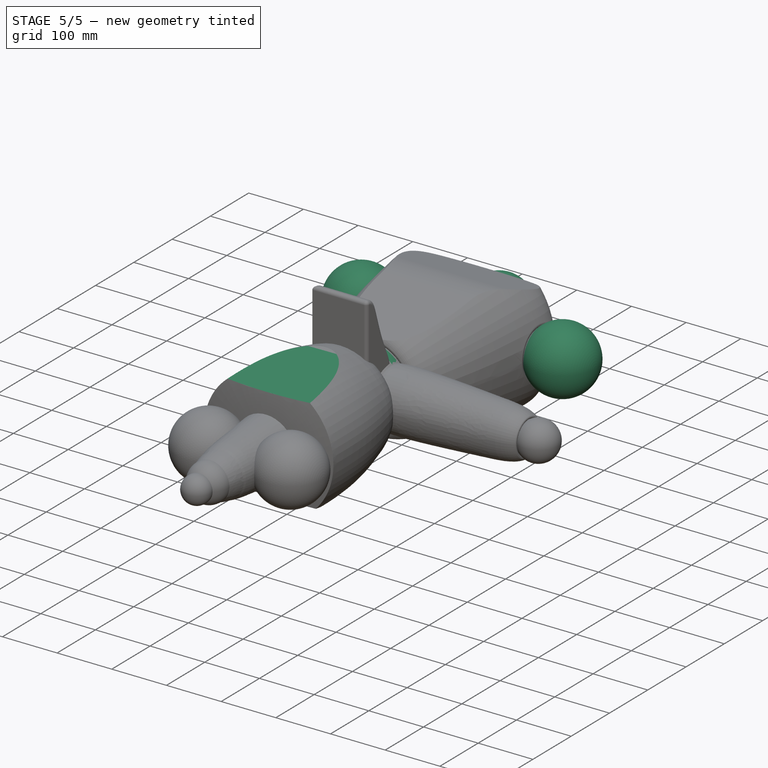
[diagram: stage 5 of 5 — iso view after this stage's code; geometry added in this stage tinted green]
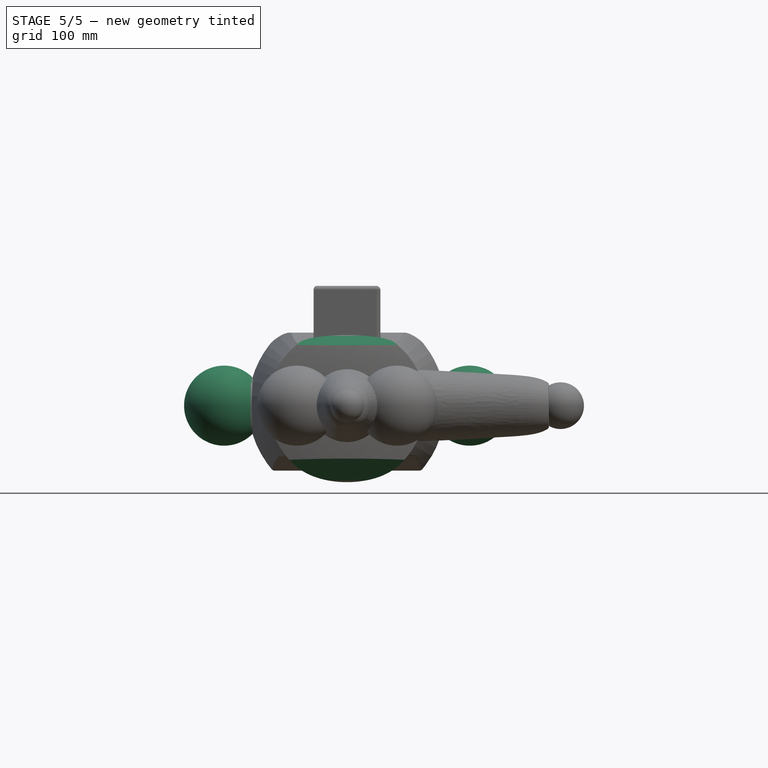
[diagram: stage 5 of 5 — front view after this stage's code; geometry added in this stage tinted green]
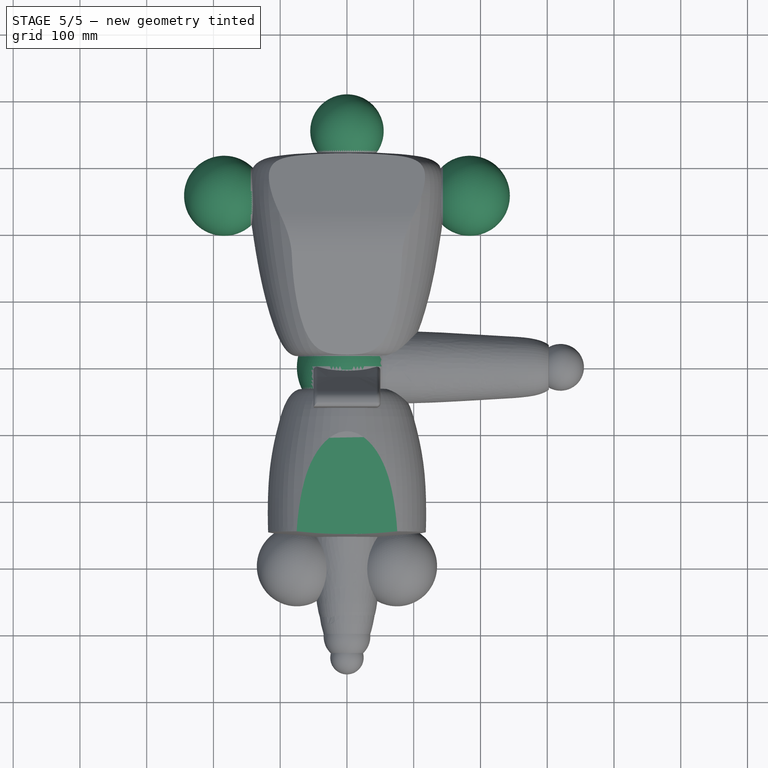
[diagram: stage 5 of 5 — top view after this stage's code; geometry added in this stage tinted green]
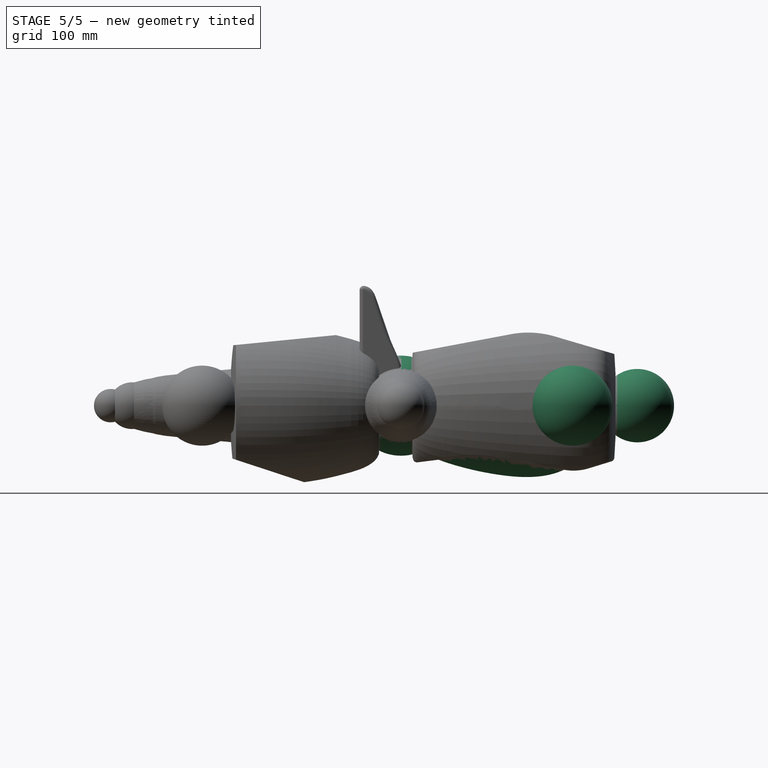
[diagram: stage 5 of 5 — right view after this stage's code; geometry added in this stage tinted green]
FEATURE [PartDesign::CoordinateSystem] LCS_0
  AttacherType = Attacher::AttachEngine3D
  MapMode = 2
  Support = -> [X_Axis020]
FEATURE [Sketcher::SketchObject] Sketch061
  FullyConstrained = true
  MapMode = 5
  Support = -> [XY_Plane021]
  expr: Constraints[25] = 296.3 * <<Parameters>>.head_tall
  expr: Constraints[26] = 47.53 * <<Parameters>>.head_tall
  expr: Constraints[27] = 144.61 * <<Parameters>>.head_tall
  expr: Constraints[28] = 243.92 * <<Parameters>>.head_tall
  expr: Constraints[29] = 77.76 * <<Parameters>>.head_width
  expr: Constraints[30] = 103.37 * <<Parameters>>.head_width
  expr: Constraints[31] = 96.27 * <<Parameters>>.head_width
  expr: Constraints[32] = 54.11 * <<Parameters>>.head_width
  expr: Constraints[33] = 53.7 * <<Parameters>>.head_width
  sketch-geometry (14):
    g0: LineSegment StartX=0 StartY=0 StartZ=0 EndX=0 EndY=296.3 EndZ=0
    g1-g7: Circle x7 (B-spline internal-alignment scaffolding for g8; pole/knot coordinates omitted)
    g8: BSplineCurve PolesCount=7 KnotsCount=5 Degree=3 IsPeriodic=0
    g9-g13: GeomPoint x5 (B-spline internal-alignment scaffolding for g8; pole/knot coordinates omitted)
  constraints (19):
    c: Coincident(g0,g-1)
    c: Vertical(g0)
    c: Weight(g1) = 1
    c: Coincident(g8,g0)
    c: Equal(g1, g2-g7) x6
    c: Coincident(g8,g0)
    c: InternalAlignment(g1-g7 -> g8) x7
    c: InternalAlignment(g9-g13 -> g8) x5
    c: Horizontal(g0,g2)
    c: Horizontal(g0,g6)
    c: DistanceY(g0,g0) = 296.3
    c: DistanceY(g0,g12) = 47.53
    c: DistanceY(g0,g11) = 144.61
    c: DistanceY(g0,g10) = 243.92
    c: DistanceX(g0,g12) = 77.76
    c: DistanceX(g0,g11) = 103.37
    c: DistanceX(g0,g10) = 96.27
    c: DistanceX(g0,g2) = 54.11
    c: DistanceX(g0,g6) = 53.7
FEATURE [PartDesign::Revolution] Revolution033
  Angle = 360
  Axis = (0,1,0)
  Base = (0,0,0)
  Profile = -> Sketch061
  ReferenceAxis = -> Sketch061 [V_Axis]
  Reversed = true
FEATURE [PartDesign::CoordinateSystem] Local_CS028  label="Chest/Neck LCS"
  AttacherType = Attacher::AttachEngine3D
  AttachmentOffset = pos=(354,0,0) rot=(0,0,1;0rad)
  MapMode = 4
  Placement = pos=(0,354,0) rot=(0.57735,0.57735,0.57735;2.0944rad)
  Support = -> [Revolution034]
FEATURE [PartDesign::CoordinateSystem] Local_CS029  label="Chest/Waist LCS"
  AttacherType = Attacher::AttachEngine3D
  MapMode = 2
  Support = -> [Revolution034]
FEATURE [PartDesign::CoordinateSystem] Local_CS030  label="Chest/Left shoulder LCS"
  AttacherType = Attacher::AttachEngine3D
  AttachmentOffset = pos=(184,257,0) rot=(0,0,1;0rad)
  MapMode = 2
  Placement = pos=(184,257,0) rot=(0,0,1;0rad)
  Support = -> [Revolution034]
FEATURE [PartDesign::CoordinateSystem] Local_CS031  label="Chest/Right shoulder LCS"
  AttacherType = Attacher::AttachEngine3D
  AttachmentOffset = pos=(-184,257,0) rot=(0,0,1;0rad)
  MapMode = 2
  Placement = pos=(-184,257,0) rot=(0,0,1;0rad)
  Support = -> [Revolution034]
FEATURE [Sketcher::SketchObject] Sketch063
  FullyConstrained = true
  MapMode = 5
  Support = -> [XY_Plane021]
  expr: Constraints[5] = 55 * <<Parameters>>.Neck_tall
  sketch-geometry (2):
    g0: LineSegment StartX=0 StartY=55 StartZ=0 EndX=0 EndY=-55 EndZ=0
    g1: ArcOfCircle CenterX=0 CenterY=0 CenterZ=0 NormalX=0 NormalY=0 NormalZ=1 AngleXU=0 Radius=55 StartAngle=4.71239 EndAngle=7.85398
  constraints (6):
    c: Vertical(g0)
    c: Coincident(g1,g-1)
    c: Coincident(g1,g0)
    c: Coincident(g1,g0)
    c: PointOnObject(g0,g-2)
    c: Radius(g1) = 55
FEATURE [PartDesign::Groove] Groove026
  Angle = 360
  Axis = (0,1,0)
  Base = (0,0,0)
  BaseFeature = -> Revolution033
  Profile = -> Sketch063
  ReferenceAxis = -> Sketch063 [V_Axis]
FEATURE [Sketcher::SketchObject] Sketch064
  FullyConstrained = true
  MapMode = 5
  Placement = pos=(0,0,0) rot=(1,0,0;1.5708rad)
  Support = -> [XZ_Plane021]
  expr: Constraints[10] = 250 * <<Parameters>>.head_width
  expr: Constraints[11] = 125 * <<Parameters>>.head_width
  expr: Constraints[12] = 75 * <<Parameters>>.head_width
  expr: Constraints[13] = 75 * <<Parameters>>.head_width
  expr: Constraints[14] = 125 * <<Parameters>>.head_width
  sketch-geometry (5):
    g0: LineSegment StartX=-125 StartY=125 StartZ=0 EndX=125 EndY=125 EndZ=0
    g1: LineSegment StartX=125 StartY=125 StartZ=0 EndX=125 EndY=50 EndZ=0
    g2: LineSegment StartX=125 StartY=50 StartZ=0 EndX=0 EndY=75 EndZ=0
    g3: LineSegment StartX=0 StartY=75 StartZ=0 EndX=-125 EndY=50 EndZ=0
    g4: LineSegment StartX=-125 StartY=50 StartZ=0 EndX=-125 EndY=125 EndZ=0
  constraints (15):
    c: Horizontal(g0)
    c: Coincident(g0,g1)
    c: Vertical(g1)
    c: Coincident(g1,g2)
    c: Coincident(g2,g3)
    c: Coincident(g3,g4)
    c: Coincident(g4,g0)
    c: Vertical(g4)
    c: Horizontal(g3,g1)
    c: PointOnObject(g2,g-2)
    c: DistanceX(g0,g0) = 250
    c: DistanceX(g0,g-1) = 125
    c: DistanceY(g4,g4) = 75
    c: DistanceY(g-1,g2) = 75
    c: DistanceY(g-1,g0) = 125
FEATURE [PartDesign::Pocket] Pocket009
  BaseFeature = -> Groove026
  Direction = (0,1,0.05)
  Length = 300
  Length2 = 5
  Profile = -> Sketch064
  ReferenceAxis = -> Sketch064 [N_Axis]
  Type = 0
  UseCustomVector = true
FEATURE [PartDesign::Fillet] Fillet027
  Base = -> Pocket009 [Edge3]
  BaseFeature = -> Pocket009
  Radius = 3
  SupportTransform = false
  UseAllEdges = false
FEATURE [Sketcher::SketchObject] Sketch069
  FullyConstrained = true
  MapMode = 5
  Support = -> [XY_Plane022]
  expr: Constraints[12] = 60 * <<Parameters>>.body_width
  expr: Constraints[13] = 184 * <<Parameters>>.body_width
  expr: Constraints[4] = 257 * <<Parameters>>.body_tall
  expr: Constraints[5] = 60 * <<Parameters>>.body_width
  expr: Constraints[6] = 184 * <<Parameters>>.body_width
  sketch-geometry (4):
    g0: LineSegment StartX=124 StartY=257 StartZ=0 EndX=244 EndY=257 EndZ=0
    g1: ArcOfCircle CenterX=184 CenterY=257 CenterZ=0 NormalX=0 NormalY=0 NormalZ=1 AngleXU=0 Radius=60 StartAngle=3e-16 EndAngle=3.14159
    g2: LineSegment StartX=-244 StartY=257 StartZ=0 EndX=-124 EndY=257 EndZ=0
    g3: ArcOfCircle CenterX=-184 CenterY=257 CenterZ=0 NormalX=0 NormalY=0 NormalZ=1 AngleXU=0 Radius=60 StartAngle=0 EndAngle=3.14159
  constraints (14):
    c: Horizontal(g0)
    c: PointOnObject(g1,g0)
    c: Coincident(g1,g0)
    c: Coincident(g1,g0)
    c: DistanceY(g-1,g1) = 257
    c: Radius(g1) = 60
    c: DistanceX(g-1,g1) = 184
    c: Horizontal(g2)
    c: PointOnObject(g3,g2)
    c: Coincident(g3,g2)
    c: Coincident(g3,g2)
    c: Horizontal(g2,g0)
    c: Radius(g3) = 60
    c: DistanceX(g3,g-1) = 184
FEATURE [PartDesign::Groove] Groove029  label="Shoulders cut"
  Angle = 360
  Axis = (1,0,0)
  Base = (124,257,0)
  BaseFeature = -> Fillet029
  Profile = -> Sketch069
  ReferenceAxis = -> Sketch069 [Edge1]
FEATURE [PartDesign::Fillet] Fillet030  label="Shoulders fillet"
  Base = -> Groove029 [Edge6,Edge3,Edge12,Edge13]
  BaseFeature = -> Groove029
  Radius = 6
  SupportTransform = false
  UseAllEdges = false
FEATURE [PartDesign::Revolution] Revolution035  label="Neck add"
  Angle = 360
  Axis = (0,1,0)
  Base = (0,0,0)
  BaseFeature = -> Fillet030
  Profile = -> Sketch067
  ReferenceAxis = -> Sketch067 [V_Axis]
  Reversed = true
FEATURE [PartDesign::Revolution] Revolution036  label="waist add"
  Angle = 360
  Axis = (0,1,0)
  Base = (0,0,0)
  BaseFeature = -> Revolution035
  Profile = -> Sketch068
  ReferenceAxis = -> Sketch068 [V_Axis]
  Reversed = true
FEATURE [PartDesign::Revolution] Revolution037  label="Shoulders"
  Angle = 360
  Axis = (1,0,0)
  Base = (-244,257,0)
  BaseFeature = -> Revolution036
  Profile = -> Sketch069
  ReferenceAxis = -> Sketch069 [Edge3]
FEATURE [Sketcher::SketchObject] Sketch073
  FullyConstrained = true
  MapMode = 5
  Placement = pos=(0,0,0) rot=(0.57735,0.57735,0.57735;2.0944rad)
  Support = -> [YZ_Plane023]
  expr: Constraints[10] = 36.26 * <<Parameters>>.body_tall
  expr: Constraints[11] = 309.73 * <<Parameters>>.body_tall
  expr: Constraints[7] = 84.76 * <<Parameters>>.body_width
  expr: Constraints[8] = 111.75 * <<Parameters>>.body_width
  expr: Constraints[9] = 192.71 * <<Parameters>>.body_width
  sketch-geometry (4):
    g0: LineSegment StartX=-309.73 StartY=84.76 StartZ=0 EndX=-36.26 EndY=111.75 EndZ=0
    g1: LineSegment StartX=-36.26 StartY=111.75 StartZ=0 EndX=-36.26 EndY=192.71 EndZ=0
    g2: LineSegment StartX=-36.26 StartY=192.71 StartZ=0 EndX=-309.73 EndY=192.71 EndZ=0
    g3: LineSegment StartX=-309.73 StartY=192.71 StartZ=0 EndX=-309.73 EndY=84.76 EndZ=0
  constraints (12):
    c: Coincident(g0,g1)
    c: Coincident(g1,g2)
    c: Horizontal(g2)
    c: Coincident(g2,g3)
    c: Coincident(g3,g0)
    c: Vertical(g3)
    c: Vertical(g1)
    c: DistanceY(g-1,g0) = 84.76
    c: DistanceY(g-1,g0) = 111.75
    c: DistanceY(g-1,g1) = 192.71
    c: DistanceX(g0,g-1) = 36.26
    c: DistanceX(g0,g-1) = 309.73
FEATURE [PartDesign::Pocket] Pocket012  label="front cut"
  BaseFeature = -> Revolution039
  Direction = (-1,2e-16,-3e-16)
  Length = 5
  Length2 = 5
  Midplane = true
  Profile = -> Sketch073
  ReferenceAxis = -> Sketch073 [N_Axis]
  Type = 1
FEATURE [Sketcher::SketchObject] Sketch074
  FullyConstrained = true
  MapMode = 5
  Placement = pos=(0,0,0) rot=(0.57735,0.57735,0.57735;2.0944rad)
  Support = -> [YZ_Plane023]
  expr: Constraints[10] = 71.47 * <<Parameters>>.body_width
  expr: Constraints[11] = 220.91 * <<Parameters>>.body_width
  expr: Constraints[7] = 109.32 * <<Parameters>>.body_tall
  expr: Constraints[8] = 276.34 * <<Parameters>>.body_tall
  expr: Constraints[9] = 126.41 * <<Parameters>>.body_width
  sketch-geometry (4):
    g0: LineSegment StartX=-276.34 StartY=-71.47 StartZ=0 EndX=-109.32 EndY=-126.41 EndZ=0
    g1: LineSegment StartX=-109.32 StartY=-126.41 StartZ=0 EndX=-109.32 EndY=-220.91 EndZ=0
    g2: LineSegment StartX=-109.32 StartY=-220.91 StartZ=0 EndX=-276.34 EndY=-220.91 EndZ=0
    g3: LineSegment StartX=-276.34 StartY=-220.91 StartZ=0 EndX=-276.34 EndY=-71.47 EndZ=0
  constraints (12):
    c: Coincident(g0,g1)
    c: Coincident(g1,g2)
    c: Horizontal(g2)
    c: Coincident(g2,g3)
    c: Coincident(g3,g0)
    c: Vertical(g3)
    c: Vertical(g1)
    c: DistanceX(g0,g-1) = 109.32
    c: DistanceX(g0,g-1) = 276.34
    c: DistanceY(g0,g-1) = 126.41
    c: DistanceY(g0,g-1) = 71.47
    c: DistanceY(g1,g-1) = 220.91
FEATURE [PartDesign::Pocket] Pocket013  label="rear cut"
  BaseFeature = -> Pocket012
  Direction = (-1,2e-16,-3e-16)
  Length = 5
  Length2 = 5
  Midplane = true
  Profile = -> Sketch074
  ReferenceAxis = -> Sketch074 [N_Axis]
  Type = 1
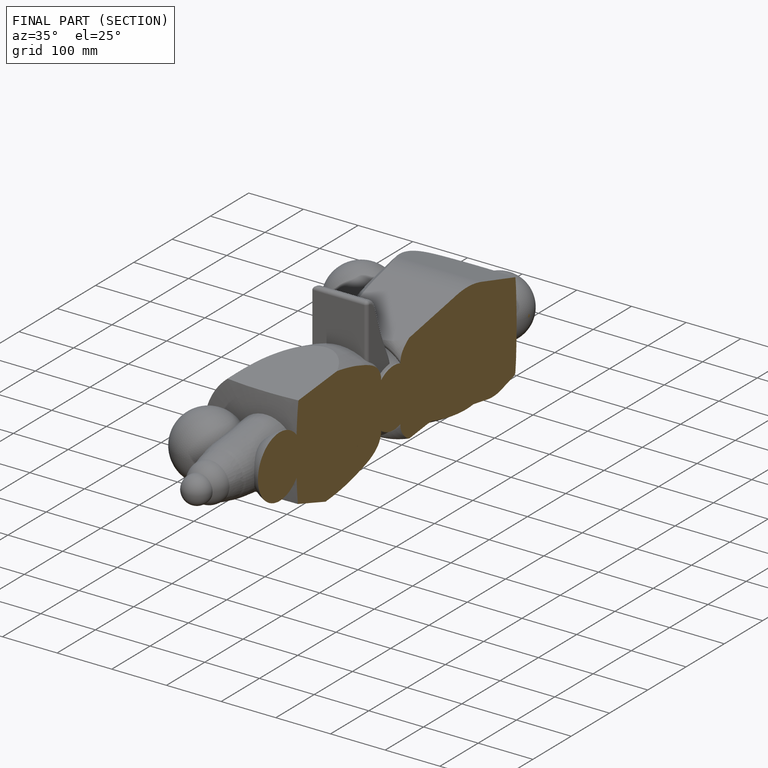
[diagram: finished part — half-section view (interior)]
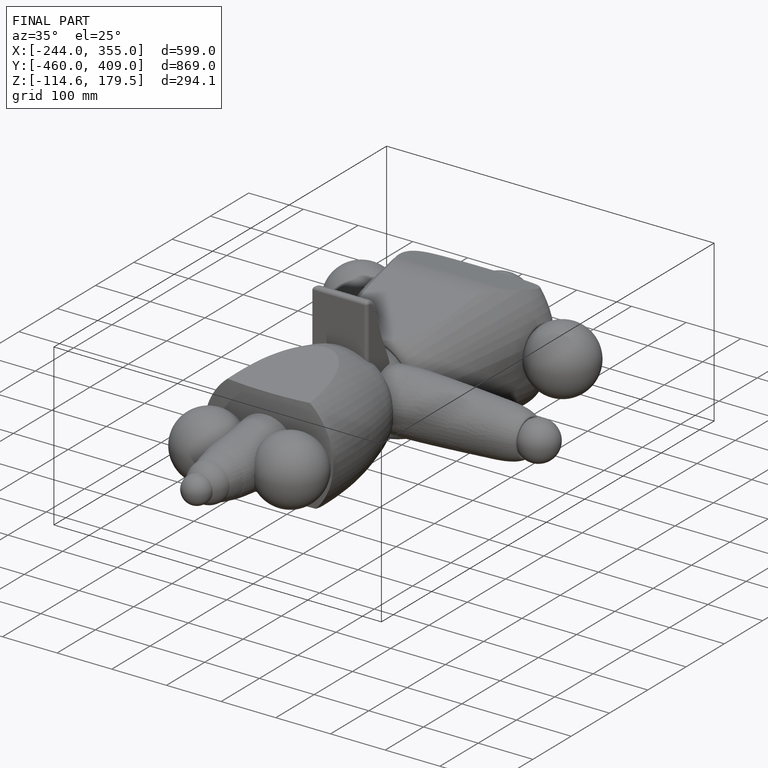
[diagram: finished part — iso view with bounding-box wireframe]
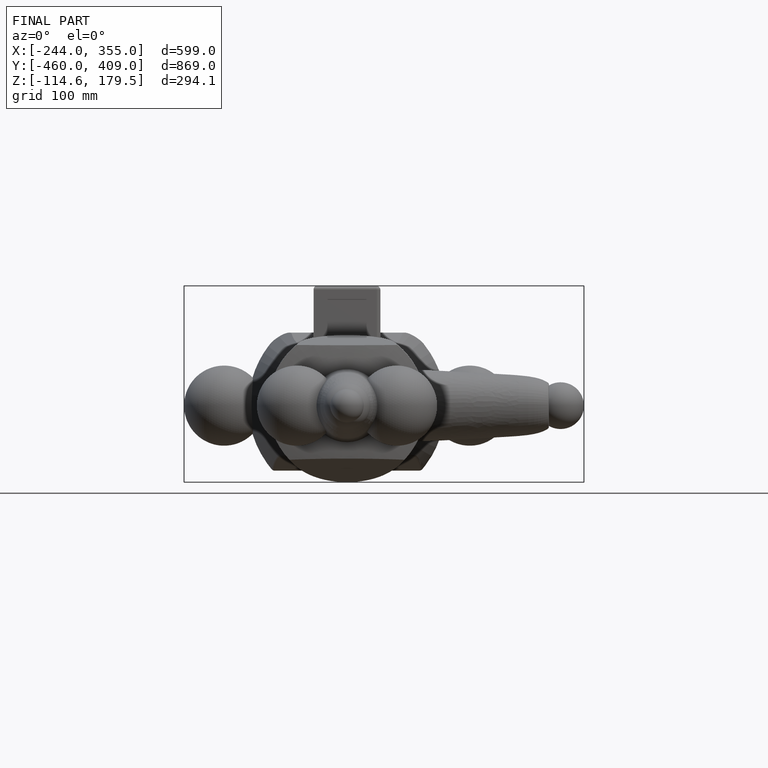
[diagram: finished part — front view with bounding-box wireframe]
